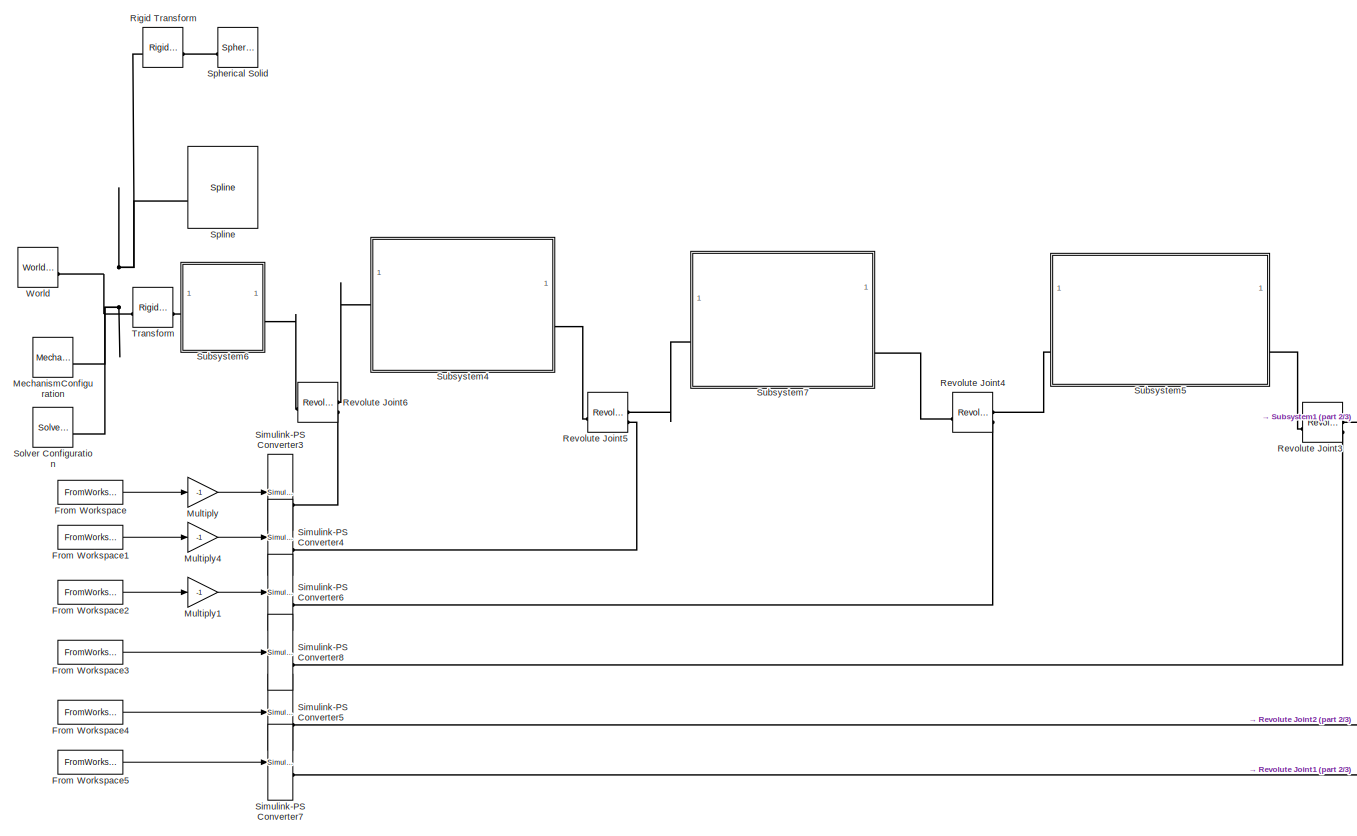
[diagram: root canvas - part 1/3, left side, full height]
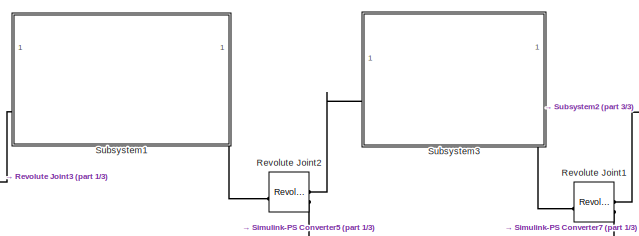
[diagram: root canvas - part 2/3, central region]
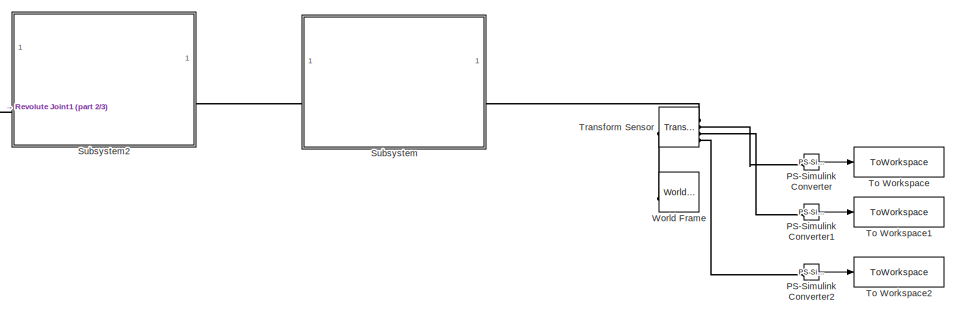
[diagram: root canvas - part 3/3, middle right region]
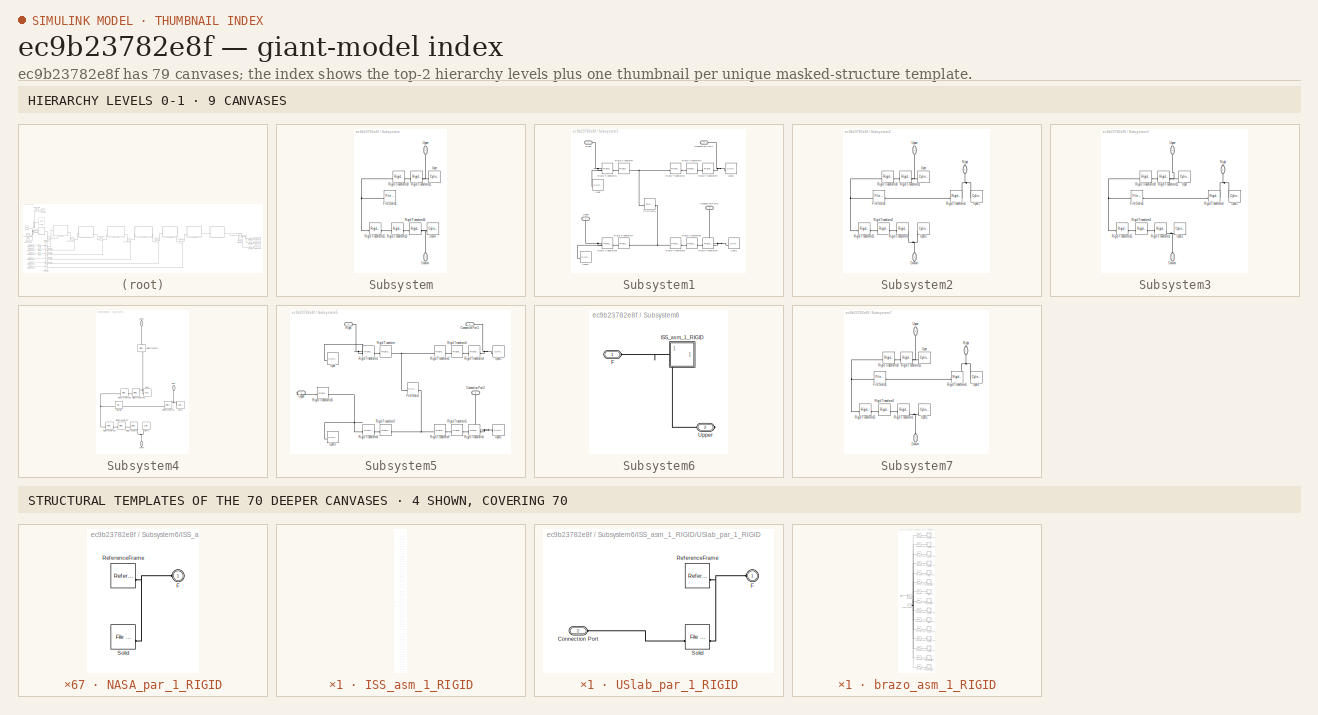
[diagram: thumbnail index - top-2 hierarchy levels (9 canvases) + 4 structural-template representatives of the remaining 70 canvases]
MODEL slx_ec9b23782e8f
KIND model
CONFIG AbsTol = auto
CONFIG EnableMultiTasking = off
CONFIG FixedStep = auto
CONFIG MaxStep = auto
CONFIG MinStep = auto
CONFIG RelTol = 1e-3
CONFIG SampleTimeConstraint = Unconstrained
CONFIG SolverName = VariableStepAuto
CONFIG StartTime = 0.0
CONFIG StopTime = 10
WORKSPACE source: external: MATLAB File  (data not in archive)
BLOCK [FromWorkspace] From Workspace
  SampleTime = -1
  VariableName = ts_q1
BLOCK [FromWorkspace] From Workspace1
  SampleTime = -1
  VariableName = ts_q2
BLOCK [FromWorkspace] From Workspace2
  SampleTime = -1
  VariableName = ts_q3
BLOCK [FromWorkspace] From Workspace3
  SampleTime = -1
  VariableName = ts_q4
BLOCK [FromWorkspace] From Workspace4
  SampleTime = -1
  VariableName = ts_q5
BLOCK [FromWorkspace] From Workspace5
  SampleTime = -1
  VariableName = ts_q6
BLOCK [Reference] MechanismConfiguration  REF=sm_lib/Utilities/Mechanism
Configuration
  SourceBlock = sm_lib/Utilities/Mechanism\nConfiguration
  SourceType = Mechanism\nConfiguration
BLOCK [Gain] Multiply
  Gain = -1
BLOCK [Gain] Multiply1
  Gain = -1
BLOCK [Gain] Multiply4
  Gain = -1
BLOCK [Reference] PS-Simulink Converter  REF=nesl_utility/PS-Simulink
Converter
  SourceBlock = nesl_utility/PS-Simulink\nConverter
  SourceType = PS-Simulink\nConverter
BLOCK [Reference] PS-Simulink Converter1  REF=nesl_utility/PS-Simulink
Converter
  SourceBlock = nesl_utility/PS-Simulink\nConverter
  SourceType = PS-Simulink\nConverter
BLOCK [Reference] PS-Simulink Converter2  REF=nesl_utility/PS-Simulink
Converter
  SourceBlock = nesl_utility/PS-Simulink\nConverter
  SourceType = PS-Simulink\nConverter
BLOCK [Reference] Revolute Joint1  REF=sm_lib/Joints/Revolute Joint
  NameLocation = top
  SourceBlock = sm_lib/Joints/Revolute Joint
  SourceType = Revolute Joint
BLOCK [Reference] Revolute Joint2  REF=sm_lib/Joints/Revolute Joint
  NameLocation = top
  SourceBlock = sm_lib/Joints/Revolute Joint
  SourceType = Revolute Joint
BLOCK [Reference] Revolute Joint3  REF=sm_lib/Joints/Revolute Joint
  NameLocation = top
  SourceBlock = sm_lib/Joints/Revolute Joint
  SourceType = Revolute Joint
BLOCK [Reference] Revolute Joint4  REF=sm_lib/Joints/Revolute Joint
  NameLocation = top
  SourceBlock = sm_lib/Joints/Revolute Joint
  SourceType = Revolute Joint
BLOCK [Reference] Revolute Joint5  REF=sm_lib/Joints/Revolute Joint
  NameLocation = top
  SourceBlock = sm_lib/Joints/Revolute Joint
  SourceType = Revolute Joint
BLOCK [Reference] Revolute Joint6  REF=sm_lib/Joints/Revolute Joint
  NameLocation = top
  SourceBlock = sm_lib/Joints/Revolute Joint
  SourceType = Revolute Joint
BLOCK [Reference] Rigid Transform  REF=sm_lib/Frames and
Transforms/Rigid
Transform
  SourceBlock = sm_lib/Frames and\nTransforms/Rigid\nTransform
  SourceType = Rigid\nTransform
BLOCK [Reference] Simulink-PS Converter3  REF=nesl_utility/Simulink-PS
Converter
  SourceBlock = nesl_utility/Simulink-PS\nConverter
  SourceType = Simulink-PS\nConverter
BLOCK [Reference] Simulink-PS Converter4  REF=nesl_utility/Simulink-PS
Converter
  SourceBlock = nesl_utility/Simulink-PS\nConverter
  SourceType = Simulink-PS\nConverter
BLOCK [Reference] Simulink-PS Converter5  REF=nesl_utility/Simulink-PS
Converter
  SourceBlock = nesl_utility/Simulink-PS\nConverter
  SourceType = Simulink-PS\nConverter
BLOCK [Reference] Simulink-PS Converter6  REF=nesl_utility/Simulink-PS
Converter
  SourceBlock = nesl_utility/Simulink-PS\nConverter
  SourceType = Simulink-PS\nConverter
BLOCK [Reference] Simulink-PS Converter7  REF=nesl_utility/Simulink-PS
Converter
  SourceBlock = nesl_utility/Simulink-PS\nConverter
  SourceType = Simulink-PS\nConverter
BLOCK [Reference] Simulink-PS Converter8  REF=nesl_utility/Simulink-PS
Converter
  SourceBlock = nesl_utility/Simulink-PS\nConverter
  SourceType = Simulink-PS\nConverter
BLOCK [Reference] Solver Configuration  REF=nesl_utility/Solver
Configuration
  SourceBlock = nesl_utility/Solver\nConfiguration
  SourceType = Solver\nConfiguration
BLOCK [Reference] Spherical Solid  REF=sm_lib/Body Elements/Spherical Solid
  NameLocation = top
  SourceBlock = sm_lib/Body Elements/Spherical Solid
  SourceType = Spherical Solid
BLOCK [Reference] Spline  REF=sm_lib/Curves and Surfaces/Spline
  SourceBlock = sm_lib/Curves and Surfaces/Spline
  SourceType = Spline
BLOCK [SubSystem] Subsystem
  NameLocation = top
BLOCK [Reference] Subsystem/Down  REF=sm_lib/Body Elements/Cylindrical Solid
  NameLocation = top
  SourceBlock = sm_lib/Body Elements/Cylindrical Solid
  SourceType = Cylindrical Solid
BLOCK [PMIOPort] Subsystem/Downn
  NameLocation = right
  Port = 2
  Side = Right
BLOCK [Reference] Subsystem/File Solid1  REF=sm_lib/Body Elements/File Solid
  SourceBlock = sm_lib/Body Elements/File Solid
  SourceType = File Solid
BLOCK [Reference] Subsystem/Rigid Transform10  REF=sm_lib/Frames and
Transforms/Rigid
Transform
  SourceBlock = sm_lib/Frames and\nTransforms/Rigid\nTransform
  SourceType = Rigid\nTransform
BLOCK [Reference] Subsystem/Rigid Transform11  REF=sm_lib/Frames and
Transforms/Rigid
Transform
  SourceBlock = sm_lib/Frames and\nTransforms/Rigid\nTransform
  SourceType = Rigid\nTransform
BLOCK [Reference] Subsystem/Rigid Transform13  REF=sm_lib/Frames and
Transforms/Rigid
Transform
  SourceBlock = sm_lib/Frames and\nTransforms/Rigid\nTransform
  SourceType = Rigid\nTransform
BLOCK [Reference] Subsystem/Rigid Transform14  REF=sm_lib/Frames and
Transforms/Rigid
Transform
  SourceBlock = sm_lib/Frames and\nTransforms/Rigid\nTransform
  SourceType = Rigid\nTransform
BLOCK [Reference] Subsystem/Rigid Transform15  REF=sm_lib/Frames and
Transforms/Rigid
Transform
  SourceBlock = sm_lib/Frames and\nTransforms/Rigid\nTransform
  SourceType = Rigid\nTransform
BLOCK [Reference] Subsystem/Uper  REF=sm_lib/Body Elements/Cylindrical Solid
  NameLocation = top
  SourceBlock = sm_lib/Body Elements/Cylindrical Solid
  SourceType = Cylindrical Solid
BLOCK [PMIOPort] Subsystem/Upper
  NameLocation = left
  Side = Left
BLOCK [SubSystem] Subsystem1
  NameLocation = top
BLOCK [PMIOPort] Subsystem1/Connection Port1
  Port = 2
  Side = Left
BLOCK [PMIOPort] Subsystem1/Connection Port2
  Port = 4
  Side = Right
BLOCK [Reference] Subsystem1/File Solid  REF=sm_lib/Body Elements/File Solid
  SourceBlock = sm_lib/Body Elements/File Solid
  SourceType = File Solid
BLOCK [PMIOPort] Subsystem1/Right
  Side = Left
BLOCK [Reference] Subsystem1/Rigid Transform  REF=sm_lib/Frames and
Transforms/Rigid
Transform
  NameLocation = top
  SourceBlock = sm_lib/Frames and\nTransforms/Rigid\nTransform
  SourceType = Rigid\nTransform
BLOCK [Reference] Subsystem1/Rigid Transform1  REF=sm_lib/Frames and
Transforms/Rigid
Transform
  NameLocation = top
  SourceBlock = sm_lib/Frames and\nTransforms/Rigid\nTransform
  SourceType = Rigid\nTransform
BLOCK [Reference] Subsystem1/Rigid Transform2  REF=sm_lib/Frames and
Transforms/Rigid
Transform
  SourceBlock = sm_lib/Frames and\nTransforms/Rigid\nTransform
  SourceType = Rigid\nTransform
BLOCK [Reference] Subsystem1/Rigid Transform3  REF=sm_lib/Frames and
Transforms/Rigid
Transform
  SourceBlock = sm_lib/Frames and\nTransforms/Rigid\nTransform
  SourceType = Rigid\nTransform
BLOCK [Reference] Subsystem1/Rigid Transform4  REF=sm_lib/Frames and
Transforms/Rigid
Transform
  SourceBlock = sm_lib/Frames and\nTransforms/Rigid\nTransform
  SourceType = Rigid\nTransform
BLOCK [Reference] Subsystem1/Rigid Transform5  REF=sm_lib/Frames and
Transforms/Rigid
Transform
  SourceBlock = sm_lib/Frames and\nTransforms/Rigid\nTransform
  SourceType = Rigid\nTransform
BLOCK [Reference] Subsystem1/Rigid Transform6  REF=sm_lib/Frames and
Transforms/Rigid
Transform
  SourceBlock = sm_lib/Frames and\nTransforms/Rigid\nTransform
  SourceType = Rigid\nTransform
BLOCK [Reference] Subsystem1/Rigid Transform7  REF=sm_lib/Frames and
Transforms/Rigid
Transform
  NameLocation = top
  SourceBlock = sm_lib/Frames and\nTransforms/Rigid\nTransform
  SourceType = Rigid\nTransform
BLOCK [Reference] Subsystem1/Rigid Transform8  REF=sm_lib/Frames and
Transforms/Rigid
Transform
  NameLocation = top
  SourceBlock = sm_lib/Frames and\nTransforms/Rigid\nTransform
  SourceType = Rigid\nTransform
BLOCK [Reference] Subsystem1/Rigid Transform9  REF=sm_lib/Frames and
Transforms/Rigid
Transform
  SourceBlock = sm_lib/Frames and\nTransforms/Rigid\nTransform
  SourceType = Rigid\nTransform
BLOCK [Reference] Subsystem1/Uper  REF=sm_lib/Body Elements/Cylindrical Solid
  NameLocation = top
  SourceBlock = sm_lib/Body Elements/Cylindrical Solid
  SourceType = Cylindrical Solid
BLOCK [Reference] Subsystem1/Uper1  REF=sm_lib/Body Elements/Cylindrical Solid
  NameLocation = top
  SourceBlock = sm_lib/Body Elements/Cylindrical Solid
  SourceType = Cylindrical Solid
BLOCK [Reference] Subsystem1/Uper2  REF=sm_lib/Body Elements/Cylindrical Solid
  NameLocation = top
  SourceBlock = sm_lib/Body Elements/Cylindrical Solid
  SourceType = Cylindrical Solid
BLOCK [Reference] Subsystem1/Uper3  REF=sm_lib/Body Elements/Cylindrical Solid
  NameLocation = top
  SourceBlock = sm_lib/Body Elements/Cylindrical Solid
  SourceType = Cylindrical Solid
BLOCK [PMIOPort] Subsystem1/Upper
  Port = 3
  Side = Right
BLOCK [SubSystem] Subsystem2
  NameLocation = top
BLOCK [PMIOPort] Subsystem2/Downn
  NameLocation = right
  Port = 2
  Side = Right
BLOCK [Reference] Subsystem2/File Solid1  REF=sm_lib/Body Elements/File Solid
  SourceBlock = sm_lib/Body Elements/File Solid
  SourceType = File Solid
BLOCK [PMIOPort] Subsystem2/Right
  NameLocation = left
  Port = 3
  Side = Right
BLOCK [Reference] Subsystem2/Rigid Transform1  REF=sm_lib/Frames and
Transforms/Rigid
Transform
  SourceBlock = sm_lib/Frames and\nTransforms/Rigid\nTransform
  SourceType = Rigid\nTransform
BLOCK [Reference] Subsystem2/Rigid Transform10  REF=sm_lib/Frames and
Transforms/Rigid
Transform
  SourceBlock = sm_lib/Frames and\nTransforms/Rigid\nTransform
  SourceType = Rigid\nTransform
BLOCK [Reference] Subsystem2/Rigid Transform11  REF=sm_lib/Frames and
Transforms/Rigid
Transform
  SourceBlock = sm_lib/Frames and\nTransforms/Rigid\nTransform
  SourceType = Rigid\nTransform
BLOCK [Reference] Subsystem2/Rigid Transform15  REF=sm_lib/Frames and
Transforms/Rigid
Transform
  SourceBlock = sm_lib/Frames and\nTransforms/Rigid\nTransform
  SourceType = Rigid\nTransform
BLOCK [Reference] Subsystem2/Rigid Transform2  REF=sm_lib/Frames and
Transforms/Rigid
Transform
  SourceBlock = sm_lib/Frames and\nTransforms/Rigid\nTransform
  SourceType = Rigid\nTransform
BLOCK [Reference] Subsystem2/Rigid Transform4  REF=sm_lib/Frames and
Transforms/Rigid
Transform
  SourceBlock = sm_lib/Frames and\nTransforms/Rigid\nTransform
  SourceType = Rigid\nTransform
BLOCK [Reference] Subsystem2/Uper  REF=sm_lib/Body Elements/Cylindrical Solid
  NameLocation = top
  SourceBlock = sm_lib/Body Elements/Cylindrical Solid
  SourceType = Cylindrical Solid
BLOCK [Reference] Subsystem2/Uper1  REF=sm_lib/Body Elements/Cylindrical Solid
  NameLocation = top
  SourceBlock = sm_lib/Body Elements/Cylindrical Solid
  SourceType = Cylindrical Solid
BLOCK [Reference] Subsystem2/Uper2  REF=sm_lib/Body Elements/Cylindrical Solid
  NameLocation = top
  SourceBlock = sm_lib/Body Elements/Cylindrical Solid
  SourceType = Cylindrical Solid
BLOCK [PMIOPort] Subsystem2/Upper
  NameLocation = left
  Side = Left
BLOCK [SubSystem] Subsystem3
  NameLocation = top
BLOCK [PMIOPort] Subsystem3/Downn
  NameLocation = right
  Port = 2
  Side = Left
BLOCK [Reference] Subsystem3/File Solid1  REF=sm_lib/Body Elements/File Solid
  SourceBlock = sm_lib/Body Elements/File Solid
  SourceType = File Solid
BLOCK [PMIOPort] Subsystem3/Right
  NameLocation = left
  Port = 3
  Side = Right
BLOCK [Reference] Subsystem3/Rigid Transform1  REF=sm_lib/Frames and
Transforms/Rigid
Transform
  SourceBlock = sm_lib/Frames and\nTransforms/Rigid\nTransform
  SourceType = Rigid\nTransform
BLOCK [Reference] Subsystem3/Rigid Transform10  REF=sm_lib/Frames and
Transforms/Rigid
Transform
  SourceBlock = sm_lib/Frames and\nTransforms/Rigid\nTransform
  SourceType = Rigid\nTransform
BLOCK [Reference] Subsystem3/Rigid Transform11  REF=sm_lib/Frames and
Transforms/Rigid
Transform
  SourceBlock = sm_lib/Frames and\nTransforms/Rigid\nTransform
  SourceType = Rigid\nTransform
BLOCK [Reference] Subsystem3/Rigid Transform15  REF=sm_lib/Frames and
Transforms/Rigid
Transform
  SourceBlock = sm_lib/Frames and\nTransforms/Rigid\nTransform
  SourceType = Rigid\nTransform
BLOCK [Reference] Subsystem3/Rigid Transform2  REF=sm_lib/Frames and
Transforms/Rigid
Transform
  SourceBlock = sm_lib/Frames and\nTransforms/Rigid\nTransform
  SourceType = Rigid\nTransform
BLOCK [Reference] Subsystem3/Rigid Transform4  REF=sm_lib/Frames and
Transforms/Rigid
Transform
  SourceBlock = sm_lib/Frames and\nTransforms/Rigid\nTransform
  SourceType = Rigid\nTransform
BLOCK [Reference] Subsystem3/Uper  REF=sm_lib/Body Elements/Cylindrical Solid
  NameLocation = top
  SourceBlock = sm_lib/Body Elements/Cylindrical Solid
  SourceType = Cylindrical Solid
BLOCK [Reference] Subsystem3/Uper1  REF=sm_lib/Body Elements/Cylindrical Solid
  NameLocation = top
  SourceBlock = sm_lib/Body Elements/Cylindrical Solid
  SourceType = Cylindrical Solid
BLOCK [Reference] Subsystem3/Uper2  REF=sm_lib/Body Elements/Cylindrical Solid
  NameLocation = top
  SourceBlock = sm_lib/Body Elements/Cylindrical Solid
  SourceType = Cylindrical Solid
BLOCK [PMIOPort] Subsystem3/Upper
  NameLocation = left
  Side = Left
BLOCK [SubSystem] Subsystem4
  NameLocation = top
BLOCK [PMIOPort] Subsystem4/Downn
  NameLocation = right
  Port = 3
  Side = Right
BLOCK [Reference] Subsystem4/File Solid1  REF=sm_lib/Body Elements/File Solid
  SourceBlock = sm_lib/Body Elements/File Solid
  SourceType = File Solid
BLOCK [PMIOPort] Subsystem4/Right
  NameLocation = left
  Side = Left
BLOCK [Reference] Subsystem4/Rigid Transform  REF=sm_lib/Frames and
Transforms/Rigid
Transform
  NameLocation = left
  SourceBlock = sm_lib/Frames and\nTransforms/Rigid\nTransform
  SourceType = Rigid\nTransform
BLOCK [Reference] Subsystem4/Rigid Transform1  REF=sm_lib/Frames and
Transforms/Rigid
Transform
  SourceBlock = sm_lib/Frames and\nTransforms/Rigid\nTransform
  SourceType = Rigid\nTransform
BLOCK [Reference] Subsystem4/Rigid Transform10  REF=sm_lib/Frames and
Transforms/Rigid
Transform
  SourceBlock = sm_lib/Frames and\nTransforms/Rigid\nTransform
  SourceType = Rigid\nTransform
BLOCK [Reference] Subsystem4/Rigid Transform11  REF=sm_lib/Frames and
Transforms/Rigid
Transform
  SourceBlock = sm_lib/Frames and\nTransforms/Rigid\nTransform
  SourceType = Rigid\nTransform
BLOCK [Reference] Subsystem4/Rigid Transform15  REF=sm_lib/Frames and
Transforms/Rigid
Transform
  SourceBlock = sm_lib/Frames and\nTransforms/Rigid\nTransform
  SourceType = Rigid\nTransform
BLOCK [Reference] Subsystem4/Rigid Transform2  REF=sm_lib/Frames and
Transforms/Rigid
Transform
  SourceBlock = sm_lib/Frames and\nTransforms/Rigid\nTransform
  SourceType = Rigid\nTransform
BLOCK [Reference] Subsystem4/Rigid Transform4  REF=sm_lib/Frames and
Transforms/Rigid
Transform
  SourceBlock = sm_lib/Frames and\nTransforms/Rigid\nTransform
  SourceType = Rigid\nTransform
BLOCK [Reference] Subsystem4/Uper  REF=sm_lib/Body Elements/Cylindrical Solid
  NameLocation = top
  SourceBlock = sm_lib/Body Elements/Cylindrical Solid
  SourceType = Cylindrical Solid
BLOCK [Reference] Subsystem4/Uper1  REF=sm_lib/Body Elements/Cylindrical Solid
  NameLocation = top
  SourceBlock = sm_lib/Body Elements/Cylindrical Solid
  SourceType = Cylindrical Solid
BLOCK [Reference] Subsystem4/Uper2  REF=sm_lib/Body Elements/Cylindrical Solid
  NameLocation = top
  SourceBlock = sm_lib/Body Elements/Cylindrical Solid
  SourceType = Cylindrical Solid
BLOCK [PMIOPort] Subsystem4/Upper
  NameLocation = left
  Port = 2
  Side = Right
BLOCK [SubSystem] Subsystem5
BLOCK [PMIOPort] Subsystem5/Connection Port1
  Port = 2
  Side = Left
BLOCK [PMIOPort] Subsystem5/Connection Port2
  Port = 3
  Side = Right
BLOCK [Reference] Subsystem5/File Solid  REF=sm_lib/Body Elements/File Solid
  SourceBlock = sm_lib/Body Elements/File Solid
  SourceType = File Solid
BLOCK [PMIOPort] Subsystem5/Right
  Side = Left
BLOCK [Reference] Subsystem5/Rigid Transform  REF=sm_lib/Frames and
Transforms/Rigid
Transform
  NameLocation = top
  SourceBlock = sm_lib/Frames and\nTransforms/Rigid\nTransform
  SourceType = Rigid\nTransform
BLOCK [Reference] Subsystem5/Rigid Transform1  REF=sm_lib/Frames and
Transforms/Rigid
Transform
  NameLocation = top
  SourceBlock = sm_lib/Frames and\nTransforms/Rigid\nTransform
  SourceType = Rigid\nTransform
BLOCK [Reference] Subsystem5/Rigid Transform10  REF=sm_lib/Frames and
Transforms/Rigid
Transform
  SourceBlock = sm_lib/Frames and\nTransforms/Rigid\nTransform
  SourceType = Rigid\nTransform
BLOCK [Reference] Subsystem5/Rigid Transform2  REF=sm_lib/Frames and
Transforms/Rigid
Transform
  SourceBlock = sm_lib/Frames and\nTransforms/Rigid\nTransform
  SourceType = Rigid\nTransform
BLOCK [Reference] Subsystem5/Rigid Transform3  REF=sm_lib/Frames and
Transforms/Rigid
Transform
  SourceBlock = sm_lib/Frames and\nTransforms/Rigid\nTransform
  SourceType = Rigid\nTransform
BLOCK [Reference] Subsystem5/Rigid Transform4  REF=sm_lib/Frames and
Transforms/Rigid
Transform
  SourceBlock = sm_lib/Frames and\nTransforms/Rigid\nTransform
  SourceType = Rigid\nTransform
BLOCK [Reference] Subsystem5/Rigid Transform5  REF=sm_lib/Frames and
Transforms/Rigid
Transform
  SourceBlock = sm_lib/Frames and\nTransforms/Rigid\nTransform
  SourceType = Rigid\nTransform
BLOCK [Reference] Subsystem5/Rigid Transform6  REF=sm_lib/Frames and
Transforms/Rigid
Transform
  SourceBlock = sm_lib/Frames and\nTransforms/Rigid\nTransform
  SourceType = Rigid\nTransform
BLOCK [Reference] Subsystem5/Rigid Transform7  REF=sm_lib/Frames and
Transforms/Rigid
Transform
  NameLocation = top
  SourceBlock = sm_lib/Frames and\nTransforms/Rigid\nTransform
  SourceType = Rigid\nTransform
BLOCK [Reference] Subsystem5/Rigid Transform8  REF=sm_lib/Frames and
Transforms/Rigid
Transform
  NameLocation = top
  SourceBlock = sm_lib/Frames and\nTransforms/Rigid\nTransform
  SourceType = Rigid\nTransform
BLOCK [Reference] Subsystem5/Rigid Transform9  REF=sm_lib/Frames and
Transforms/Rigid
Transform
  SourceBlock = sm_lib/Frames and\nTransforms/Rigid\nTransform
  SourceType = Rigid\nTransform
BLOCK [Reference] Subsystem5/Uper  REF=sm_lib/Body Elements/Cylindrical Solid
  NameLocation = top
  SourceBlock = sm_lib/Body Elements/Cylindrical Solid
  SourceType = Cylindrical Solid
BLOCK [Reference] Subsystem5/Uper1  REF=sm_lib/Body Elements/Cylindrical Solid
  NameLocation = top
  SourceBlock = sm_lib/Body Elements/Cylindrical Solid
  SourceType = Cylindrical Solid
BLOCK [Reference] Subsystem5/Uper2  REF=sm_lib/Body Elements/Cylindrical Solid
  NameLocation = top
  SourceBlock = sm_lib/Body Elements/Cylindrical Solid
  SourceType = Cylindrical Solid
BLOCK [Reference] Subsystem5/Uper3  REF=sm_lib/Body Elements/Cylindrical Solid
  NameLocation = top
  SourceBlock = sm_lib/Body Elements/Cylindrical Solid
  SourceType = Cylindrical Solid
BLOCK [PMIOPort] Subsystem5/Upper
  Port = 4
  Side = Right
BLOCK [SubSystem] Subsystem6
BLOCK [PMIOPort] Subsystem6/F
  Side = Left
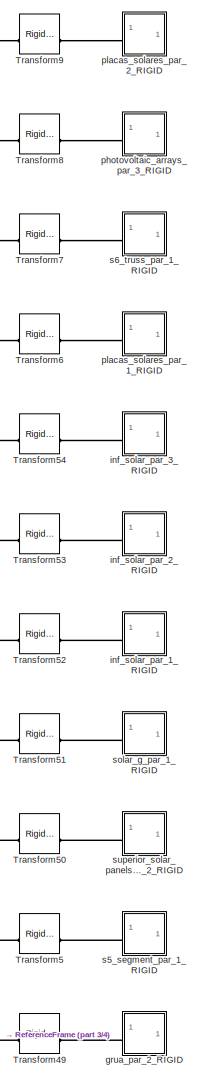
[diagram: Subsystem6/ISS_asm_1_RIGID - part 1/4, top center region]
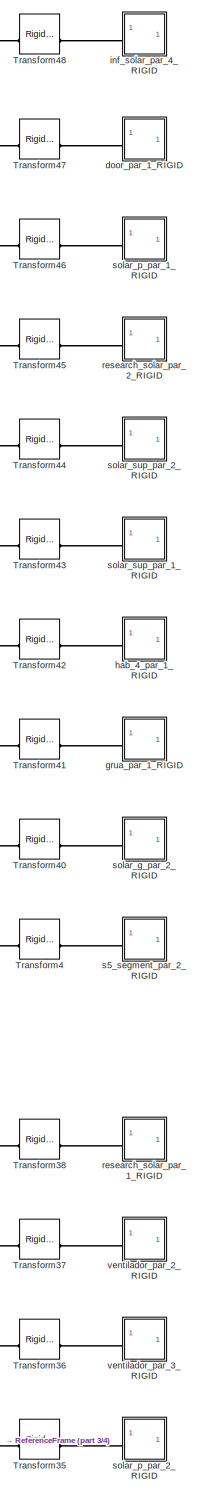
[diagram: Subsystem6/ISS_asm_1_RIGID - part 2/4, central region]
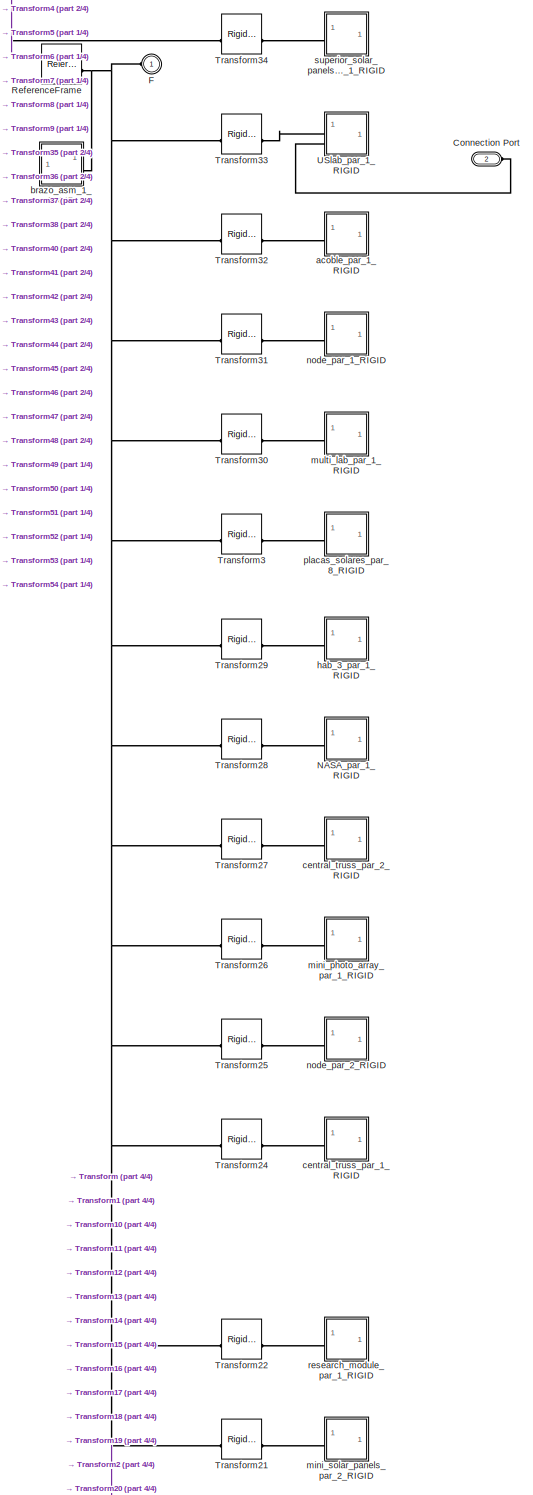
[diagram: Subsystem6/ISS_asm_1_RIGID - part 3/4, full width, middle band]
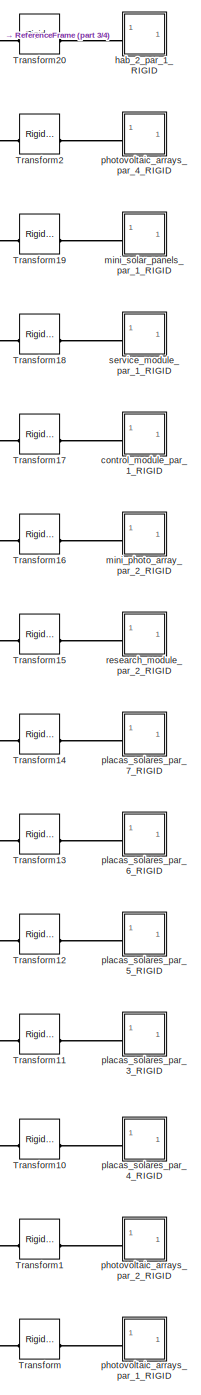
[diagram: Subsystem6/ISS_asm_1_RIGID - part 4/4, bottom center region]
BLOCK [SubSystem] Subsystem6/ISS_asm_1_RIGID
BLOCK [PMIOPort] Subsystem6/ISS_asm_1_RIGID/Connection Port
  Port = 2
  Side = Left
BLOCK [PMIOPort] Subsystem6/ISS_asm_1_RIGID/F
  Side = Left
BLOCK [SubSystem] Subsystem6/ISS_asm_1_RIGID/NASA_par_1_RIGID
BLOCK [PMIOPort] Subsystem6/ISS_asm_1_RIGID/NASA_par_1_RIGID/F
  Side = Left
BLOCK [Reference] Subsystem6/ISS_asm_1_RIGID/NASA_par_1_RIGID/ReferenceFrame  REF=sm_lib/Frames and
Transforms/Reference
Frame
  SourceBlock = sm_lib/Frames and\nTransforms/Reference\nFrame
  SourceType = Reference\nFrame
BLOCK [Reference] Subsystem6/ISS_asm_1_RIGID/NASA_par_1_RIGID/Solid  REF=sm_lib/Body Elements/File Solid
  SourceBlock = sm_lib/Body Elements/File Solid
  SourceType = File Solid
BLOCK [Reference] Subsystem6/ISS_asm_1_RIGID/ReferenceFrame  REF=sm_lib/Frames and
Transforms/Reference
Frame
  SourceBlock = sm_lib/Frames and\nTransforms/Reference\nFrame
  SourceType = Reference\nFrame
BLOCK [Reference] Subsystem6/ISS_asm_1_RIGID/Transform  REF=sm_lib/Frames and
Transforms/Rigid
Transform
  SourceBlock = sm_lib/Frames and\nTransforms/Rigid\nTransform
  SourceType = Rigid\nTransform
BLOCK [Reference] Subsystem6/ISS_asm_1_RIGID/Transform1  REF=sm_lib/Frames and
Transforms/Rigid
Transform
  SourceBlock = sm_lib/Frames and\nTransforms/Rigid\nTransform
  SourceType = Rigid\nTransform
BLOCK [Reference] Subsystem6/ISS_asm_1_RIGID/Transform10  REF=sm_lib/Frames and
Transforms/Rigid
Transform
  SourceBlock = sm_lib/Frames and\nTransforms/Rigid\nTransform
  SourceType = Rigid\nTransform
BLOCK [Reference] Subsystem6/ISS_asm_1_RIGID/Transform11  REF=sm_lib/Frames and
Transforms/Rigid
Transform
  SourceBlock = sm_lib/Frames and\nTransforms/Rigid\nTransform
  SourceType = Rigid\nTransform
BLOCK [Reference] Subsystem6/ISS_asm_1_RIGID/Transform12  REF=sm_lib/Frames and
Transforms/Rigid
Transform
  SourceBlock = sm_lib/Frames and\nTransforms/Rigid\nTransform
  SourceType = Rigid\nTransform
BLOCK [Reference] Subsystem6/ISS_asm_1_RIGID/Transform13  REF=sm_lib/Frames and
Transforms/Rigid
Transform
  SourceBlock = sm_lib/Frames and\nTransforms/Rigid\nTransform
  SourceType = Rigid\nTransform
BLOCK [Reference] Subsystem6/ISS_asm_1_RIGID/Transform14  REF=sm_lib/Frames and
Transforms/Rigid
Transform
  SourceBlock = sm_lib/Frames and\nTransforms/Rigid\nTransform
  SourceType = Rigid\nTransform
BLOCK [Reference] Subsystem6/ISS_asm_1_RIGID/Transform15  REF=sm_lib/Frames and
Transforms/Rigid
Transform
  SourceBlock = sm_lib/Frames and\nTransforms/Rigid\nTransform
  SourceType = Rigid\nTransform
BLOCK [Reference] Subsystem6/ISS_asm_1_RIGID/Transform16  REF=sm_lib/Frames and
Transforms/Rigid
Transform
  SourceBlock = sm_lib/Frames and\nTransforms/Rigid\nTransform
  SourceType = Rigid\nTransform
BLOCK [Reference] Subsystem6/ISS_asm_1_RIGID/Transform17  REF=sm_lib/Frames and
Transforms/Rigid
Transform
  SourceBlock = sm_lib/Frames and\nTransforms/Rigid\nTransform
  SourceType = Rigid\nTransform
BLOCK [Reference] Subsystem6/ISS_asm_1_RIGID/Transform18  REF=sm_lib/Frames and
Transforms/Rigid
Transform
  SourceBlock = sm_lib/Frames and\nTransforms/Rigid\nTransform
  SourceType = Rigid\nTransform
BLOCK [Reference] Subsystem6/ISS_asm_1_RIGID/Transform19  REF=sm_lib/Frames and
Transforms/Rigid
Transform
  SourceBlock = sm_lib/Frames and\nTransforms/Rigid\nTransform
  SourceType = Rigid\nTransform
BLOCK [Reference] Subsystem6/ISS_asm_1_RIGID/Transform2  REF=sm_lib/Frames and
Transforms/Rigid
Transform
  SourceBlock = sm_lib/Frames and\nTransforms/Rigid\nTransform
  SourceType = Rigid\nTransform
BLOCK [Reference] Subsystem6/ISS_asm_1_RIGID/Transform20  REF=sm_lib/Frames and
Transforms/Rigid
Transform
  SourceBlock = sm_lib/Frames and\nTransforms/Rigid\nTransform
  SourceType = Rigid\nTransform
BLOCK [Reference] Subsystem6/ISS_asm_1_RIGID/Transform21  REF=sm_lib/Frames and
Transforms/Rigid
Transform
  SourceBlock = sm_lib/Frames and\nTransforms/Rigid\nTransform
  SourceType = Rigid\nTransform
BLOCK [Reference] Subsystem6/ISS_asm_1_RIGID/Transform22  REF=sm_lib/Frames and
Transforms/Rigid
Transform
  SourceBlock = sm_lib/Frames and\nTransforms/Rigid\nTransform
  SourceType = Rigid\nTransform
BLOCK [Reference] Subsystem6/ISS_asm_1_RIGID/Transform24  REF=sm_lib/Frames and
Transforms/Rigid
Transform
  SourceBlock = sm_lib/Frames and\nTransforms/Rigid\nTransform
  SourceType = Rigid\nTransform
BLOCK [Reference] Subsystem6/ISS_asm_1_RIGID/Transform25  REF=sm_lib/Frames and
Transforms/Rigid
Transform
  SourceBlock = sm_lib/Frames and\nTransforms/Rigid\nTransform
  SourceType = Rigid\nTransform
BLOCK [Reference] Subsystem6/ISS_asm_1_RIGID/Transform26  REF=sm_lib/Frames and
Transforms/Rigid
Transform
  SourceBlock = sm_lib/Frames and\nTransforms/Rigid\nTransform
  SourceType = Rigid\nTransform
BLOCK [Reference] Subsystem6/ISS_asm_1_RIGID/Transform27  REF=sm_lib/Frames and
Transforms/Rigid
Transform
  SourceBlock = sm_lib/Frames and\nTransforms/Rigid\nTransform
  SourceType = Rigid\nTransform
BLOCK [Reference] Subsystem6/ISS_asm_1_RIGID/Transform28  REF=sm_lib/Frames and
Transforms/Rigid
Transform
  SourceBlock = sm_lib/Frames and\nTransforms/Rigid\nTransform
  SourceType = Rigid\nTransform
BLOCK [Reference] Subsystem6/ISS_asm_1_RIGID/Transform29  REF=sm_lib/Frames and
Transforms/Rigid
Transform
  SourceBlock = sm_lib/Frames and\nTransforms/Rigid\nTransform
  SourceType = Rigid\nTransform
BLOCK [Reference] Subsystem6/ISS_asm_1_RIGID/Transform3  REF=sm_lib/Frames and
Transforms/Rigid
Transform
  SourceBlock = sm_lib/Frames and\nTransforms/Rigid\nTransform
  SourceType = Rigid\nTransform
BLOCK [Reference] Subsystem6/ISS_asm_1_RIGID/Transform30  REF=sm_lib/Frames and
Transforms/Rigid
Transform
  SourceBlock = sm_lib/Frames and\nTransforms/Rigid\nTransform
  SourceType = Rigid\nTransform
BLOCK [Reference] Subsystem6/ISS_asm_1_RIGID/Transform31  REF=sm_lib/Frames and
Transforms/Rigid
Transform
  SourceBlock = sm_lib/Frames and\nTransforms/Rigid\nTransform
  SourceType = Rigid\nTransform
BLOCK [Reference] Subsystem6/ISS_asm_1_RIGID/Transform32  REF=sm_lib/Frames and
Transforms/Rigid
Transform
  SourceBlock = sm_lib/Frames and\nTransforms/Rigid\nTransform
  SourceType = Rigid\nTransform
BLOCK [Reference] Subsystem6/ISS_asm_1_RIGID/Transform33  REF=sm_lib/Frames and
Transforms/Rigid
Transform
  SourceBlock = sm_lib/Frames and\nTransforms/Rigid\nTransform
  SourceType = Rigid\nTransform
BLOCK [Reference] Subsystem6/ISS_asm_1_RIGID/Transform34  REF=sm_lib/Frames and
Transforms/Rigid
Transform
  SourceBlock = sm_lib/Frames and\nTransforms/Rigid\nTransform
  SourceType = Rigid\nTransform
BLOCK [Reference] Subsystem6/ISS_asm_1_RIGID/Transform35  REF=sm_lib/Frames and
Transforms/Rigid
Transform
  SourceBlock = sm_lib/Frames and\nTransforms/Rigid\nTransform
  SourceType = Rigid\nTransform
BLOCK [Reference] Subsystem6/ISS_asm_1_RIGID/Transform36  REF=sm_lib/Frames and
Transforms/Rigid
Transform
  SourceBlock = sm_lib/Frames and\nTransforms/Rigid\nTransform
  SourceType = Rigid\nTransform
BLOCK [Reference] Subsystem6/ISS_asm_1_RIGID/Transform37  REF=sm_lib/Frames and
Transforms/Rigid
Transform
  SourceBlock = sm_lib/Frames and\nTransforms/Rigid\nTransform
  SourceType = Rigid\nTransform
BLOCK [Reference] Subsystem6/ISS_asm_1_RIGID/Transform38  REF=sm_lib/Frames and
Transforms/Rigid
Transform
  SourceBlock = sm_lib/Frames and\nTransforms/Rigid\nTransform
  SourceType = Rigid\nTransform
BLOCK [Reference] Subsystem6/ISS_asm_1_RIGID/Transform4  REF=sm_lib/Frames and
Transforms/Rigid
Transform
  SourceBlock = sm_lib/Frames and\nTransforms/Rigid\nTransform
  SourceType = Rigid\nTransform
BLOCK [Reference] Subsystem6/ISS_asm_1_RIGID/Transform40  REF=sm_lib/Frames and
Transforms/Rigid
Transform
  SourceBlock = sm_lib/Frames and\nTransforms/Rigid\nTransform
  SourceType = Rigid\nTransform
BLOCK [Reference] Subsystem6/ISS_asm_1_RIGID/Transform41  REF=sm_lib/Frames and
Transforms/Rigid
Transform
  SourceBlock = sm_lib/Frames and\nTransforms/Rigid\nTransform
  SourceType = Rigid\nTransform
BLOCK [Reference] Subsystem6/ISS_asm_1_RIGID/Transform42  REF=sm_lib/Frames and
Transforms/Rigid
Transform
  SourceBlock = sm_lib/Frames and\nTransforms/Rigid\nTransform
  SourceType = Rigid\nTransform
BLOCK [Reference] Subsystem6/ISS_asm_1_RIGID/Transform43  REF=sm_lib/Frames and
Transforms/Rigid
Transform
  SourceBlock = sm_lib/Frames and\nTransforms/Rigid\nTransform
  SourceType = Rigid\nTransform
BLOCK [Reference] Subsystem6/ISS_asm_1_RIGID/Transform44  REF=sm_lib/Frames and
Transforms/Rigid
Transform
  SourceBlock = sm_lib/Frames and\nTransforms/Rigid\nTransform
  SourceType = Rigid\nTransform
BLOCK [Reference] Subsystem6/ISS_asm_1_RIGID/Transform45  REF=sm_lib/Frames and
Transforms/Rigid
Transform
  SourceBlock = sm_lib/Frames and\nTransforms/Rigid\nTransform
  SourceType = Rigid\nTransform
BLOCK [Reference] Subsystem6/ISS_asm_1_RIGID/Transform46  REF=sm_lib/Frames and
Transforms/Rigid
Transform
  SourceBlock = sm_lib/Frames and\nTransforms/Rigid\nTransform
  SourceType = Rigid\nTransform
BLOCK [Reference] Subsystem6/ISS_asm_1_RIGID/Transform47  REF=sm_lib/Frames and
Transforms/Rigid
Transform
  SourceBlock = sm_lib/Frames and\nTransforms/Rigid\nTransform
  SourceType = Rigid\nTransform
BLOCK [Reference] Subsystem6/ISS_asm_1_RIGID/Transform48  REF=sm_lib/Frames and
Transforms/Rigid
Transform
  SourceBlock = sm_lib/Frames and\nTransforms/Rigid\nTransform
  SourceType = Rigid\nTransform
BLOCK [Reference] Subsystem6/ISS_asm_1_RIGID/Transform49  REF=sm_lib/Frames and
Transforms/Rigid
Transform
  SourceBlock = sm_lib/Frames and\nTransforms/Rigid\nTransform
  SourceType = Rigid\nTransform
BLOCK [Reference] Subsystem6/ISS_asm_1_RIGID/Transform5  REF=sm_lib/Frames and
Transforms/Rigid
Transform
  SourceBlock = sm_lib/Frames and\nTransforms/Rigid\nTransform
  SourceType = Rigid\nTransform
BLOCK [Reference] Subsystem6/ISS_asm_1_RIGID/Transform50  REF=sm_lib/Frames and
Transforms/Rigid
Transform
  SourceBlock = sm_lib/Frames and\nTransforms/Rigid\nTransform
  SourceType = Rigid\nTransform
BLOCK [Reference] Subsystem6/ISS_asm_1_RIGID/Transform51  REF=sm_lib/Frames and
Transforms/Rigid
Transform
  SourceBlock = sm_lib/Frames and\nTransforms/Rigid\nTransform
  SourceType = Rigid\nTransform
BLOCK [Reference] Subsystem6/ISS_asm_1_RIGID/Transform52  REF=sm_lib/Frames and
Transforms/Rigid
Transform
  SourceBlock = sm_lib/Frames and\nTransforms/Rigid\nTransform
  SourceType = Rigid\nTransform
BLOCK [Reference] Subsystem6/ISS_asm_1_RIGID/Transform53  REF=sm_lib/Frames and
Transforms/Rigid
Transform
  SourceBlock = sm_lib/Frames and\nTransforms/Rigid\nTransform
  SourceType = Rigid\nTransform
BLOCK [Reference] Subsystem6/ISS_asm_1_RIGID/Transform54  REF=sm_lib/Frames and
Transforms/Rigid
Transform
  SourceBlock = sm_lib/Frames and\nTransforms/Rigid\nTransform
  SourceType = Rigid\nTransform
BLOCK [Reference] Subsystem6/ISS_asm_1_RIGID/Transform6  REF=sm_lib/Frames and
Transforms/Rigid
Transform
  SourceBlock = sm_lib/Frames and\nTransforms/Rigid\nTransform
  SourceType = Rigid\nTransform
BLOCK [Reference] Subsystem6/ISS_asm_1_RIGID/Transform7  REF=sm_lib/Frames and
Transforms/Rigid
Transform
  SourceBlock = sm_lib/Frames and\nTransforms/Rigid\nTransform
  SourceType = Rigid\nTransform
BLOCK [Reference] Subsystem6/ISS_asm_1_RIGID/Transform8  REF=sm_lib/Frames and
Transforms/Rigid
Transform
  SourceBlock = sm_lib/Frames and\nTransforms/Rigid\nTransform
  SourceType = Rigid\nTransform
BLOCK [Reference] Subsystem6/ISS_asm_1_RIGID/Transform9  REF=sm_lib/Frames and
Transforms/Rigid
Transform
  SourceBlock = sm_lib/Frames and\nTransforms/Rigid\nTransform
  SourceType = Rigid\nTransform
BLOCK [SubSystem] Subsystem6/ISS_asm_1_RIGID/USlab_par_1_RIGID
BLOCK [PMIOPort] Subsystem6/ISS_asm_1_RIGID/USlab_par_1_RIGID/Connection Port
  Port = 2
  Side = Left
BLOCK [PMIOPort] Subsystem6/ISS_asm_1_RIGID/USlab_par_1_RIGID/F
  Side = Left
BLOCK [Reference] Subsystem6/ISS_asm_1_RIGID/USlab_par_1_RIGID/ReferenceFrame  REF=sm_lib/Frames and
Transforms/Reference
Frame
  SourceBlock = sm_lib/Frames and\nTransforms/Reference\nFrame
  SourceType = Reference\nFrame
BLOCK [Reference] Subsystem6/ISS_asm_1_RIGID/USlab_par_1_RIGID/Solid  REF=sm_lib/Body Elements/File Solid
  SourceBlock = sm_lib/Body Elements/File Solid
  SourceType = File Solid
BLOCK [SubSystem] Subsystem6/ISS_asm_1_RIGID/acoble_par_1_RIGID
BLOCK [PMIOPort] Subsystem6/ISS_asm_1_RIGID/acoble_par_1_RIGID/F
  Side = Left
BLOCK [Reference] Subsystem6/ISS_asm_1_RIGID/acoble_par_1_RIGID/ReferenceFrame  REF=sm_lib/Frames and
Transforms/Reference
Frame
  SourceBlock = sm_lib/Frames and\nTransforms/Reference\nFrame
  SourceType = Reference\nFrame
BLOCK [Reference] Subsystem6/ISS_asm_1_RIGID/acoble_par_1_RIGID/Solid  REF=sm_lib/Body Elements/File Solid
  SourceBlock = sm_lib/Body Elements/File Solid
  SourceType = File Solid
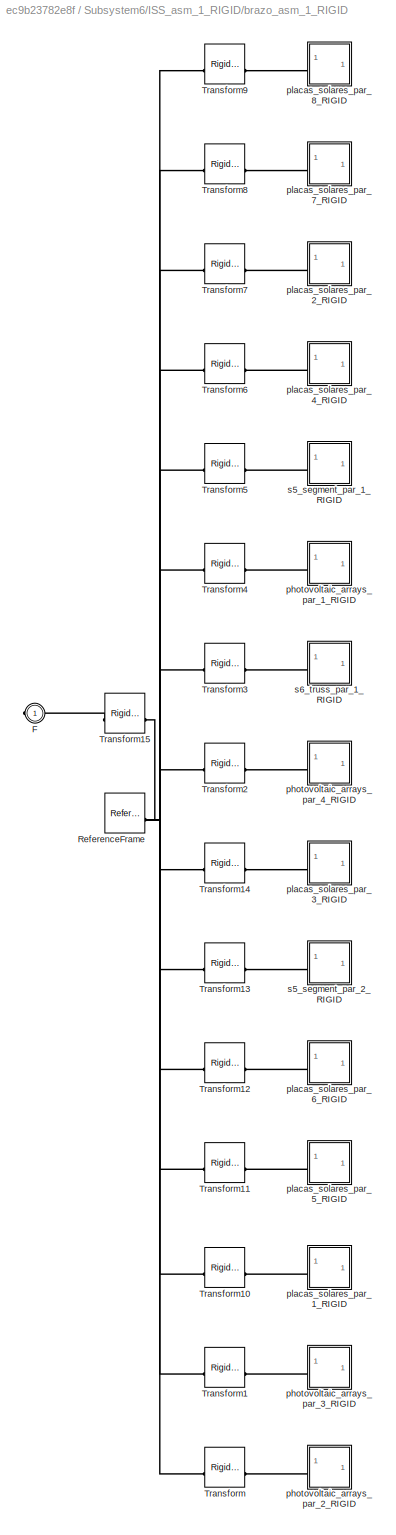
BLOCK [SubSystem] Subsystem6/ISS_asm_1_RIGID/brazo_asm_1_RIGID
BLOCK [PMIOPort] Subsystem6/ISS_asm_1_RIGID/brazo_asm_1_RIGID/F
  Side = Right
BLOCK [Reference] Subsystem6/ISS_asm_1_RIGID/brazo_asm_1_RIGID/ReferenceFrame  REF=sm_lib/Frames and
Transforms/Reference
Frame
  SourceBlock = sm_lib/Frames and\nTransforms/Reference\nFrame
  SourceType = Reference\nFrame
BLOCK [Reference] Subsystem6/ISS_asm_1_RIGID/brazo_asm_1_RIGID/Transform  REF=sm_lib/Frames and
Transforms/Rigid
Transform
  SourceBlock = sm_lib/Frames and\nTransforms/Rigid\nTransform
  SourceType = Rigid\nTransform
BLOCK [Reference] Subsystem6/ISS_asm_1_RIGID/brazo_asm_1_RIGID/Transform1  REF=sm_lib/Frames and
Transforms/Rigid
Transform
  SourceBlock = sm_lib/Frames and\nTransforms/Rigid\nTransform
  SourceType = Rigid\nTransform
BLOCK [Reference] Subsystem6/ISS_asm_1_RIGID/brazo_asm_1_RIGID/Transform10  REF=sm_lib/Frames and
Transforms/Rigid
Transform
  SourceBlock = sm_lib/Frames and\nTransforms/Rigid\nTransform
  SourceType = Rigid\nTransform
BLOCK [Reference] Subsystem6/ISS_asm_1_RIGID/brazo_asm_1_RIGID/Transform11  REF=sm_lib/Frames and
Transforms/Rigid
Transform
  SourceBlock = sm_lib/Frames and\nTransforms/Rigid\nTransform
  SourceType = Rigid\nTransform
BLOCK [Reference] Subsystem6/ISS_asm_1_RIGID/brazo_asm_1_RIGID/Transform12  REF=sm_lib/Frames and
Transforms/Rigid
Transform
  SourceBlock = sm_lib/Frames and\nTransforms/Rigid\nTransform
  SourceType = Rigid\nTransform
BLOCK [Reference] Subsystem6/ISS_asm_1_RIGID/brazo_asm_1_RIGID/Transform13  REF=sm_lib/Frames and
Transforms/Rigid
Transform
  SourceBlock = sm_lib/Frames and\nTransforms/Rigid\nTransform
  SourceType = Rigid\nTransform
BLOCK [Reference] Subsystem6/ISS_asm_1_RIGID/brazo_asm_1_RIGID/Transform14  REF=sm_lib/Frames and
Transforms/Rigid
Transform
  SourceBlock = sm_lib/Frames and\nTransforms/Rigid\nTransform
  SourceType = Rigid\nTransform
BLOCK [Reference] Subsystem6/ISS_asm_1_RIGID/brazo_asm_1_RIGID/Transform15  REF=sm_lib/Frames and
Transforms/Rigid
Transform
  SourceBlock = sm_lib/Frames and\nTransforms/Rigid\nTransform
  SourceType = Rigid\nTransform
BLOCK [Reference] Subsystem6/ISS_asm_1_RIGID/brazo_asm_1_RIGID/Transform2  REF=sm_lib/Frames and
Transforms/Rigid
Transform
  SourceBlock = sm_lib/Frames and\nTransforms/Rigid\nTransform
  SourceType = Rigid\nTransform
BLOCK [Reference] Subsystem6/ISS_asm_1_RIGID/brazo_asm_1_RIGID/Transform3  REF=sm_lib/Frames and
Transforms/Rigid
Transform
  SourceBlock = sm_lib/Frames and\nTransforms/Rigid\nTransform
  SourceType = Rigid\nTransform
BLOCK [Reference] Subsystem6/ISS_asm_1_RIGID/brazo_asm_1_RIGID/Transform4  REF=sm_lib/Frames and
Transforms/Rigid
Transform
  SourceBlock = sm_lib/Frames and\nTransforms/Rigid\nTransform
  SourceType = Rigid\nTransform
BLOCK [Reference] Subsystem6/ISS_asm_1_RIGID/brazo_asm_1_RIGID/Transform5  REF=sm_lib/Frames and
Transforms/Rigid
Transform
  SourceBlock = sm_lib/Frames and\nTransforms/Rigid\nTransform
  SourceType = Rigid\nTransform
BLOCK [Reference] Subsystem6/ISS_asm_1_RIGID/brazo_asm_1_RIGID/Transform6  REF=sm_lib/Frames and
Transforms/Rigid
Transform
  SourceBlock = sm_lib/Frames and\nTransforms/Rigid\nTransform
  SourceType = Rigid\nTransform
BLOCK [Reference] Subsystem6/ISS_asm_1_RIGID/brazo_asm_1_RIGID/Transform7  REF=sm_lib/Frames and
Transforms/Rigid
Transform
  SourceBlock = sm_lib/Frames and\nTransforms/Rigid\nTransform
  SourceType = Rigid\nTransform
BLOCK [Reference] Subsystem6/ISS_asm_1_RIGID/brazo_asm_1_RIGID/Transform8  REF=sm_lib/Frames and
Transforms/Rigid
Transform
  SourceBlock = sm_lib/Frames and\nTransforms/Rigid\nTransform
  SourceType = Rigid\nTransform
BLOCK [Reference] Subsystem6/ISS_asm_1_RIGID/brazo_asm_1_RIGID/Transform9  REF=sm_lib/Frames and
Transforms/Rigid
Transform
  SourceBlock = sm_lib/Frames and\nTransforms/Rigid\nTransform
  SourceType = Rigid\nTransform
BLOCK [SubSystem] Subsystem6/ISS_asm_1_RIGID/brazo_asm_1_RIGID/photovoltaic_arrays_par_1_RIGID
BLOCK [PMIOPort] Subsystem6/ISS_asm_1_RIGID/brazo_asm_1_RIGID/photovoltaic_arrays_par_1_RIGID/F
  Side = Left
BLOCK [Reference] Subsystem6/ISS_asm_1_RIGID/brazo_asm_1_RIGID/photovoltaic_arrays_par_1_RIGID/ReferenceFrame  REF=sm_lib/Frames and
Transforms/Reference
Frame
  SourceBlock = sm_lib/Frames and\nTransforms/Reference\nFrame
  SourceType = Reference\nFrame
BLOCK [Reference] Subsystem6/ISS_asm_1_RIGID/brazo_asm_1_RIGID/photovoltaic_arrays_par_1_RIGID/Solid  REF=sm_lib/Body Elements/File Solid
  SourceBlock = sm_lib/Body Elements/File Solid
  SourceType = File Solid
BLOCK [SubSystem] Subsystem6/ISS_asm_1_RIGID/brazo_asm_1_RIGID/photovoltaic_arrays_par_2_RIGID
BLOCK [PMIOPort] Subsystem6/ISS_asm_1_RIGID/brazo_asm_1_RIGID/photovoltaic_arrays_par_2_RIGID/F
  Side = Left
BLOCK [Reference] Subsystem6/ISS_asm_1_RIGID/brazo_asm_1_RIGID/photovoltaic_arrays_par_2_RIGID/ReferenceFrame  REF=sm_lib/Frames and
Transforms/Reference
Frame
  SourceBlock = sm_lib/Frames and\nTransforms/Reference\nFrame
  SourceType = Reference\nFrame
BLOCK [Reference] Subsystem6/ISS_asm_1_RIGID/brazo_asm_1_RIGID/photovoltaic_arrays_par_2_RIGID/Solid  REF=sm_lib/Body Elements/File Solid
  SourceBlock = sm_lib/Body Elements/File Solid
  SourceType = File Solid
BLOCK [SubSystem] Subsystem6/ISS_asm_1_RIGID/brazo_asm_1_RIGID/photovoltaic_arrays_par_3_RIGID
BLOCK [PMIOPort] Subsystem6/ISS_asm_1_RIGID/brazo_asm_1_RIGID/photovoltaic_arrays_par_3_RIGID/F
  Side = Left
BLOCK [Reference] Subsystem6/ISS_asm_1_RIGID/brazo_asm_1_RIGID/photovoltaic_arrays_par_3_RIGID/ReferenceFrame  REF=sm_lib/Frames and
Transforms/Reference
Frame
  SourceBlock = sm_lib/Frames and\nTransforms/Reference\nFrame
  SourceType = Reference\nFrame
BLOCK [Reference] Subsystem6/ISS_asm_1_RIGID/brazo_asm_1_RIGID/photovoltaic_arrays_par_3_RIGID/Solid  REF=sm_lib/Body Elements/File Solid
  SourceBlock = sm_lib/Body Elements/File Solid
  SourceType = File Solid
BLOCK [SubSystem] Subsystem6/ISS_asm_1_RIGID/brazo_asm_1_RIGID/photovoltaic_arrays_par_4_RIGID
BLOCK [PMIOPort] Subsystem6/ISS_asm_1_RIGID/brazo_asm_1_RIGID/photovoltaic_arrays_par_4_RIGID/F
  Side = Left
BLOCK [Reference] Subsystem6/ISS_asm_1_RIGID/brazo_asm_1_RIGID/photovoltaic_arrays_par_4_RIGID/ReferenceFrame  REF=sm_lib/Frames and
Transforms/Reference
Frame
  SourceBlock = sm_lib/Frames and\nTransforms/Reference\nFrame
  SourceType = Reference\nFrame
BLOCK [Reference] Subsystem6/ISS_asm_1_RIGID/brazo_asm_1_RIGID/photovoltaic_arrays_par_4_RIGID/Solid  REF=sm_lib/Body Elements/File Solid
  SourceBlock = sm_lib/Body Elements/File Solid
  SourceType = File Solid
BLOCK [SubSystem] Subsystem6/ISS_asm_1_RIGID/brazo_asm_1_RIGID/placas_solares_par_1_RIGID
BLOCK [PMIOPort] Subsystem6/ISS_asm_1_RIGID/brazo_asm_1_RIGID/placas_solares_par_1_RIGID/F
  Side = Left
BLOCK [Reference] Subsystem6/ISS_asm_1_RIGID/brazo_asm_1_RIGID/placas_solares_par_1_RIGID/ReferenceFrame  REF=sm_lib/Frames and
Transforms/Reference
Frame
  SourceBlock = sm_lib/Frames and\nTransforms/Reference\nFrame
  SourceType = Reference\nFrame
BLOCK [Reference] Subsystem6/ISS_asm_1_RIGID/brazo_asm_1_RIGID/placas_solares_par_1_RIGID/Solid  REF=sm_lib/Body Elements/File Solid
  SourceBlock = sm_lib/Body Elements/File Solid
  SourceType = File Solid
BLOCK [SubSystem] Subsystem6/ISS_asm_1_RIGID/brazo_asm_1_RIGID/placas_solares_par_2_RIGID
BLOCK [PMIOPort] Subsystem6/ISS_asm_1_RIGID/brazo_asm_1_RIGID/placas_solares_par_2_RIGID/F
  Side = Left
BLOCK [Reference] Subsystem6/ISS_asm_1_RIGID/brazo_asm_1_RIGID/placas_solares_par_2_RIGID/ReferenceFrame  REF=sm_lib/Frames and
Transforms/Reference
Frame
  SourceBlock = sm_lib/Frames and\nTransforms/Reference\nFrame
  SourceType = Reference\nFrame
BLOCK [Reference] Subsystem6/ISS_asm_1_RIGID/brazo_asm_1_RIGID/placas_solares_par_2_RIGID/Solid  REF=sm_lib/Body Elements/File Solid
  SourceBlock = sm_lib/Body Elements/File Solid
  SourceType = File Solid
BLOCK [SubSystem] Subsystem6/ISS_asm_1_RIGID/brazo_asm_1_RIGID/placas_solares_par_3_RIGID
BLOCK [PMIOPort] Subsystem6/ISS_asm_1_RIGID/brazo_asm_1_RIGID/placas_solares_par_3_RIGID/F
  Side = Left
BLOCK [Reference] Subsystem6/ISS_asm_1_RIGID/brazo_asm_1_RIGID/placas_solares_par_3_RIGID/ReferenceFrame  REF=sm_lib/Frames and
Transforms/Reference
Frame
  SourceBlock = sm_lib/Frames and\nTransforms/Reference\nFrame
  SourceType = Reference\nFrame
BLOCK [Reference] Subsystem6/ISS_asm_1_RIGID/brazo_asm_1_RIGID/placas_solares_par_3_RIGID/Solid  REF=sm_lib/Body Elements/File Solid
  SourceBlock = sm_lib/Body Elements/File Solid
  SourceType = File Solid
BLOCK [SubSystem] Subsystem6/ISS_asm_1_RIGID/brazo_asm_1_RIGID/placas_solares_par_4_RIGID
BLOCK [PMIOPort] Subsystem6/ISS_asm_1_RIGID/brazo_asm_1_RIGID/placas_solares_par_4_RIGID/F
  Side = Left
BLOCK [Reference] Subsystem6/ISS_asm_1_RIGID/brazo_asm_1_RIGID/placas_solares_par_4_RIGID/ReferenceFrame  REF=sm_lib/Frames and
Transforms/Reference
Frame
  SourceBlock = sm_lib/Frames and\nTransforms/Reference\nFrame
  SourceType = Reference\nFrame
BLOCK [Reference] Subsystem6/ISS_asm_1_RIGID/brazo_asm_1_RIGID/placas_solares_par_4_RIGID/Solid  REF=sm_lib/Body Elements/File Solid
  SourceBlock = sm_lib/Body Elements/File Solid
  SourceType = File Solid
BLOCK [SubSystem] Subsystem6/ISS_asm_1_RIGID/brazo_asm_1_RIGID/placas_solares_par_5_RIGID
BLOCK [PMIOPort] Subsystem6/ISS_asm_1_RIGID/brazo_asm_1_RIGID/placas_solares_par_5_RIGID/F
  Side = Left
BLOCK [Reference] Subsystem6/ISS_asm_1_RIGID/brazo_asm_1_RIGID/placas_solares_par_5_RIGID/ReferenceFrame  REF=sm_lib/Frames and
Transforms/Reference
Frame
  SourceBlock = sm_lib/Frames and\nTransforms/Reference\nFrame
  SourceType = Reference\nFrame
BLOCK [Reference] Subsystem6/ISS_asm_1_RIGID/brazo_asm_1_RIGID/placas_solares_par_5_RIGID/Solid  REF=sm_lib/Body Elements/File Solid
  SourceBlock = sm_lib/Body Elements/File Solid
  SourceType = File Solid
BLOCK [SubSystem] Subsystem6/ISS_asm_1_RIGID/brazo_asm_1_RIGID/placas_solares_par_6_RIGID
BLOCK [PMIOPort] Subsystem6/ISS_asm_1_RIGID/brazo_asm_1_RIGID/placas_solares_par_6_RIGID/F
  Side = Left
BLOCK [Reference] Subsystem6/ISS_asm_1_RIGID/brazo_asm_1_RIGID/placas_solares_par_6_RIGID/ReferenceFrame  REF=sm_lib/Frames and
Transforms/Reference
Frame
  SourceBlock = sm_lib/Frames and\nTransforms/Reference\nFrame
  SourceType = Reference\nFrame
BLOCK [Reference] Subsystem6/ISS_asm_1_RIGID/brazo_asm_1_RIGID/placas_solares_par_6_RIGID/Solid  REF=sm_lib/Body Elements/File Solid
  SourceBlock = sm_lib/Body Elements/File Solid
  SourceType = File Solid
BLOCK [SubSystem] Subsystem6/ISS_asm_1_RIGID/brazo_asm_1_RIGID/placas_solares_par_7_RIGID
BLOCK [PMIOPort] Subsystem6/ISS_asm_1_RIGID/brazo_asm_1_RIGID/placas_solares_par_7_RIGID/F
  Side = Left
BLOCK [Reference] Subsystem6/ISS_asm_1_RIGID/brazo_asm_1_RIGID/placas_solares_par_7_RIGID/ReferenceFrame  REF=sm_lib/Frames and
Transforms/Reference
Frame
  SourceBlock = sm_lib/Frames and\nTransforms/Reference\nFrame
  SourceType = Reference\nFrame
BLOCK [Reference] Subsystem6/ISS_asm_1_RIGID/brazo_asm_1_RIGID/placas_solares_par_7_RIGID/Solid  REF=sm_lib/Body Elements/File Solid
  SourceBlock = sm_lib/Body Elements/File Solid
  SourceType = File Solid
BLOCK [SubSystem] Subsystem6/ISS_asm_1_RIGID/brazo_asm_1_RIGID/placas_solares_par_8_RIGID
BLOCK [PMIOPort] Subsystem6/ISS_asm_1_RIGID/brazo_asm_1_RIGID/placas_solares_par_8_RIGID/F
  Side = Left
BLOCK [Reference] Subsystem6/ISS_asm_1_RIGID/brazo_asm_1_RIGID/placas_solares_par_8_RIGID/ReferenceFrame  REF=sm_lib/Frames and
Transforms/Reference
Frame
  SourceBlock = sm_lib/Frames and\nTransforms/Reference\nFrame
  SourceType = Reference\nFrame
BLOCK [Reference] Subsystem6/ISS_asm_1_RIGID/brazo_asm_1_RIGID/placas_solares_par_8_RIGID/Solid  REF=sm_lib/Body Elements/File Solid
  SourceBlock = sm_lib/Body Elements/File Solid
  SourceType = File Solid
BLOCK [SubSystem] Subsystem6/ISS_asm_1_RIGID/brazo_asm_1_RIGID/s5_segment_par_1_RIGID
BLOCK [PMIOPort] Subsystem6/ISS_asm_1_RIGID/brazo_asm_1_RIGID/s5_segment_par_1_RIGID/F
  Side = Left
BLOCK [Reference] Subsystem6/ISS_asm_1_RIGID/brazo_asm_1_RIGID/s5_segment_par_1_RIGID/ReferenceFrame  REF=sm_lib/Frames and
Transforms/Reference
Frame
  SourceBlock = sm_lib/Frames and\nTransforms/Reference\nFrame
  SourceType = Reference\nFrame
BLOCK [Reference] Subsystem6/ISS_asm_1_RIGID/brazo_asm_1_RIGID/s5_segment_par_1_RIGID/Solid  REF=sm_lib/Body Elements/File Solid
  SourceBlock = sm_lib/Body Elements/File Solid
  SourceType = File Solid
BLOCK [SubSystem] Subsystem6/ISS_asm_1_RIGID/brazo_asm_1_RIGID/s5_segment_par_2_RIGID
BLOCK [PMIOPort] Subsystem6/ISS_asm_1_RIGID/brazo_asm_1_RIGID/s5_segment_par_2_RIGID/F
  Side = Left
BLOCK [Reference] Subsystem6/ISS_asm_1_RIGID/brazo_asm_1_RIGID/s5_segment_par_2_RIGID/ReferenceFrame  REF=sm_lib/Frames and
Transforms/Reference
Frame
  SourceBlock = sm_lib/Frames and\nTransforms/Reference\nFrame
  SourceType = Reference\nFrame
BLOCK [Reference] Subsystem6/ISS_asm_1_RIGID/brazo_asm_1_RIGID/s5_segment_par_2_RIGID/Solid  REF=sm_lib/Body Elements/File Solid
  SourceBlock = sm_lib/Body Elements/File Solid
  SourceType = File Solid
BLOCK [SubSystem] Subsystem6/ISS_asm_1_RIGID/brazo_asm_1_RIGID/s6_truss_par_1_RIGID
BLOCK [PMIOPort] Subsystem6/ISS_asm_1_RIGID/brazo_asm_1_RIGID/s6_truss_par_1_RIGID/F
  Side = Left
BLOCK [Reference] Subsystem6/ISS_asm_1_RIGID/brazo_asm_1_RIGID/s6_truss_par_1_RIGID/ReferenceFrame  REF=sm_lib/Frames and
Transforms/Reference
Frame
  SourceBlock = sm_lib/Frames and\nTransforms/Reference\nFrame
  SourceType = Reference\nFrame
BLOCK [Reference] Subsystem6/ISS_asm_1_RIGID/brazo_asm_1_RIGID/s6_truss_par_1_RIGID/Solid  REF=sm_lib/Body Elements/File Solid
  SourceBlock = sm_lib/Body Elements/File Solid
  SourceType = File Solid
BLOCK [SubSystem] Subsystem6/ISS_asm_1_RIGID/central_truss_par_1_RIGID
BLOCK [PMIOPort] Subsystem6/ISS_asm_1_RIGID/central_truss_par_1_RIGID/F
  Side = Left
BLOCK [Reference] Subsystem6/ISS_asm_1_RIGID/central_truss_par_1_RIGID/ReferenceFrame  REF=sm_lib/Frames and
Transforms/Reference
Frame
  SourceBlock = sm_lib/Frames and\nTransforms/Reference\nFrame
  SourceType = Reference\nFrame
BLOCK [Reference] Subsystem6/ISS_asm_1_RIGID/central_truss_par_1_RIGID/Solid  REF=sm_lib/Body Elements/File Solid
  SourceBlock = sm_lib/Body Elements/File Solid
  SourceType = File Solid
BLOCK [SubSystem] Subsystem6/ISS_asm_1_RIGID/central_truss_par_2_RIGID
BLOCK [PMIOPort] Subsystem6/ISS_asm_1_RIGID/central_truss_par_2_RIGID/F
  Side = Left
BLOCK [Reference] Subsystem6/ISS_asm_1_RIGID/central_truss_par_2_RIGID/ReferenceFrame  REF=sm_lib/Frames and
Transforms/Reference
Frame
  SourceBlock = sm_lib/Frames and\nTransforms/Reference\nFrame
  SourceType = Reference\nFrame
BLOCK [Reference] Subsystem6/ISS_asm_1_RIGID/central_truss_par_2_RIGID/Solid  REF=sm_lib/Body Elements/File Solid
  SourceBlock = sm_lib/Body Elements/File Solid
  SourceType = File Solid
BLOCK [SubSystem] Subsystem6/ISS_asm_1_RIGID/control_module_par_1_RIGID
BLOCK [PMIOPort] Subsystem6/ISS_asm_1_RIGID/control_module_par_1_RIGID/F
  Side = Left
BLOCK [Reference] Subsystem6/ISS_asm_1_RIGID/control_module_par_1_RIGID/ReferenceFrame  REF=sm_lib/Frames and
Transforms/Reference
Frame
  SourceBlock = sm_lib/Frames and\nTransforms/Reference\nFrame
  SourceType = Reference\nFrame
BLOCK [Reference] Subsystem6/ISS_asm_1_RIGID/control_module_par_1_RIGID/Solid  REF=sm_lib/Body Elements/File Solid
  SourceBlock = sm_lib/Body Elements/File Solid
  SourceType = File Solid
BLOCK [SubSystem] Subsystem6/ISS_asm_1_RIGID/door_par_1_RIGID
BLOCK [PMIOPort] Subsystem6/ISS_asm_1_RIGID/door_par_1_RIGID/F
  Side = Left
BLOCK [Reference] Subsystem6/ISS_asm_1_RIGID/door_par_1_RIGID/ReferenceFrame  REF=sm_lib/Frames and
Transforms/Reference
Frame
  SourceBlock = sm_lib/Frames and\nTransforms/Reference\nFrame
  SourceType = Reference\nFrame
BLOCK [Reference] Subsystem6/ISS_asm_1_RIGID/door_par_1_RIGID/Solid  REF=sm_lib/Body Elements/File Solid
  SourceBlock = sm_lib/Body Elements/File Solid
  SourceType = File Solid
BLOCK [SubSystem] Subsystem6/ISS_asm_1_RIGID/grua_par_1_RIGID
BLOCK [PMIOPort] Subsystem6/ISS_asm_1_RIGID/grua_par_1_RIGID/F
  Side = Left
BLOCK [Reference] Subsystem6/ISS_asm_1_RIGID/grua_par_1_RIGID/ReferenceFrame  REF=sm_lib/Frames and
Transforms/Reference
Frame
  SourceBlock = sm_lib/Frames and\nTransforms/Reference\nFrame
  SourceType = Reference\nFrame
BLOCK [Reference] Subsystem6/ISS_asm_1_RIGID/grua_par_1_RIGID/Solid  REF=sm_lib/Body Elements/File Solid
  SourceBlock = sm_lib/Body Elements/File Solid
  SourceType = File Solid
BLOCK [SubSystem] Subsystem6/ISS_asm_1_RIGID/grua_par_2_RIGID
BLOCK [PMIOPort] Subsystem6/ISS_asm_1_RIGID/grua_par_2_RIGID/F
  Side = Left
BLOCK [Reference] Subsystem6/ISS_asm_1_RIGID/grua_par_2_RIGID/ReferenceFrame  REF=sm_lib/Frames and
Transforms/Reference
Frame
  SourceBlock = sm_lib/Frames and\nTransforms/Reference\nFrame
  SourceType = Reference\nFrame
BLOCK [Reference] Subsystem6/ISS_asm_1_RIGID/grua_par_2_RIGID/Solid  REF=sm_lib/Body Elements/File Solid
  SourceBlock = sm_lib/Body Elements/File Solid
  SourceType = File Solid
BLOCK [SubSystem] Subsystem6/ISS_asm_1_RIGID/hab_2_par_1_RIGID
BLOCK [PMIOPort] Subsystem6/ISS_asm_1_RIGID/hab_2_par_1_RIGID/F
  Side = Left
BLOCK [Reference] Subsystem6/ISS_asm_1_RIGID/hab_2_par_1_RIGID/ReferenceFrame  REF=sm_lib/Frames and
Transforms/Reference
Frame
  SourceBlock = sm_lib/Frames and\nTransforms/Reference\nFrame
  SourceType = Reference\nFrame
BLOCK [Reference] Subsystem6/ISS_asm_1_RIGID/hab_2_par_1_RIGID/Solid  REF=sm_lib/Body Elements/File Solid
  SourceBlock = sm_lib/Body Elements/File Solid
  SourceType = File Solid
BLOCK [SubSystem] Subsystem6/ISS_asm_1_RIGID/hab_3_par_1_RIGID
BLOCK [PMIOPort] Subsystem6/ISS_asm_1_RIGID/hab_3_par_1_RIGID/F
  Side = Left
BLOCK [Reference] Subsystem6/ISS_asm_1_RIGID/hab_3_par_1_RIGID/ReferenceFrame  REF=sm_lib/Frames and
Transforms/Reference
Frame
  SourceBlock = sm_lib/Frames and\nTransforms/Reference\nFrame
  SourceType = Reference\nFrame
BLOCK [Reference] Subsystem6/ISS_asm_1_RIGID/hab_3_par_1_RIGID/Solid  REF=sm_lib/Body Elements/File Solid
  SourceBlock = sm_lib/Body Elements/File Solid
  SourceType = File Solid
BLOCK [SubSystem] Subsystem6/ISS_asm_1_RIGID/hab_4_par_1_RIGID
BLOCK [PMIOPort] Subsystem6/ISS_asm_1_RIGID/hab_4_par_1_RIGID/F
  Side = Left
BLOCK [Reference] Subsystem6/ISS_asm_1_RIGID/hab_4_par_1_RIGID/ReferenceFrame  REF=sm_lib/Frames and
Transforms/Reference
Frame
  SourceBlock = sm_lib/Frames and\nTransforms/Reference\nFrame
  SourceType = Reference\nFrame
BLOCK [Reference] Subsystem6/ISS_asm_1_RIGID/hab_4_par_1_RIGID/Solid  REF=sm_lib/Body Elements/File Solid
  SourceBlock = sm_lib/Body Elements/File Solid
  SourceType = File Solid
BLOCK [SubSystem] Subsystem6/ISS_asm_1_RIGID/inf_solar_par_1_RIGID
BLOCK [PMIOPort] Subsystem6/ISS_asm_1_RIGID/inf_solar_par_1_RIGID/F
  Side = Left
BLOCK [Reference] Subsystem6/ISS_asm_1_RIGID/inf_solar_par_1_RIGID/ReferenceFrame  REF=sm_lib/Frames and
Transforms/Reference
Frame
  SourceBlock = sm_lib/Frames and\nTransforms/Reference\nFrame
  SourceType = Reference\nFrame
BLOCK [Reference] Subsystem6/ISS_asm_1_RIGID/inf_solar_par_1_RIGID/Solid  REF=sm_lib/Body Elements/File Solid
  SourceBlock = sm_lib/Body Elements/File Solid
  SourceType = File Solid
BLOCK [SubSystem] Subsystem6/ISS_asm_1_RIGID/inf_solar_par_2_RIGID
BLOCK [PMIOPort] Subsystem6/ISS_asm_1_RIGID/inf_solar_par_2_RIGID/F
  Side = Left
BLOCK [Reference] Subsystem6/ISS_asm_1_RIGID/inf_solar_par_2_RIGID/ReferenceFrame  REF=sm_lib/Frames and
Transforms/Reference
Frame
  SourceBlock = sm_lib/Frames and\nTransforms/Reference\nFrame
  SourceType = Reference\nFrame
BLOCK [Reference] Subsystem6/ISS_asm_1_RIGID/inf_solar_par_2_RIGID/Solid  REF=sm_lib/Body Elements/File Solid
  SourceBlock = sm_lib/Body Elements/File Solid
  SourceType = File Solid
BLOCK [SubSystem] Subsystem6/ISS_asm_1_RIGID/inf_solar_par_3_RIGID
BLOCK [PMIOPort] Subsystem6/ISS_asm_1_RIGID/inf_solar_par_3_RIGID/F
  Side = Left
BLOCK [Reference] Subsystem6/ISS_asm_1_RIGID/inf_solar_par_3_RIGID/ReferenceFrame  REF=sm_lib/Frames and
Transforms/Reference
Frame
  SourceBlock = sm_lib/Frames and\nTransforms/Reference\nFrame
  SourceType = Reference\nFrame
BLOCK [Reference] Subsystem6/ISS_asm_1_RIGID/inf_solar_par_3_RIGID/Solid  REF=sm_lib/Body Elements/File Solid
  SourceBlock = sm_lib/Body Elements/File Solid
  SourceType = File Solid
BLOCK [SubSystem] Subsystem6/ISS_asm_1_RIGID/inf_solar_par_4_RIGID
BLOCK [PMIOPort] Subsystem6/ISS_asm_1_RIGID/inf_solar_par_4_RIGID/F
  Side = Left
BLOCK [Reference] Subsystem6/ISS_asm_1_RIGID/inf_solar_par_4_RIGID/ReferenceFrame  REF=sm_lib/Frames and
Transforms/Reference
Frame
  SourceBlock = sm_lib/Frames and\nTransforms/Reference\nFrame
  SourceType = Reference\nFrame
BLOCK [Reference] Subsystem6/ISS_asm_1_RIGID/inf_solar_par_4_RIGID/Solid  REF=sm_lib/Body Elements/File Solid
  SourceBlock = sm_lib/Body Elements/File Solid
  SourceType = File Solid
BLOCK [SubSystem] Subsystem6/ISS_asm_1_RIGID/mini_photo_array_par_1_RIGID
BLOCK [PMIOPort] Subsystem6/ISS_asm_1_RIGID/mini_photo_array_par_1_RIGID/F
  Side = Left
BLOCK [Reference] Subsystem6/ISS_asm_1_RIGID/mini_photo_array_par_1_RIGID/ReferenceFrame  REF=sm_lib/Frames and
Transforms/Reference
Frame
  SourceBlock = sm_lib/Frames and\nTransforms/Reference\nFrame
  SourceType = Reference\nFrame
BLOCK [Reference] Subsystem6/ISS_asm_1_RIGID/mini_photo_array_par_1_RIGID/Solid  REF=sm_lib/Body Elements/File Solid
  SourceBlock = sm_lib/Body Elements/File Solid
  SourceType = File Solid
BLOCK [SubSystem] Subsystem6/ISS_asm_1_RIGID/mini_photo_array_par_2_RIGID
BLOCK [PMIOPort] Subsystem6/ISS_asm_1_RIGID/mini_photo_array_par_2_RIGID/F
  Side = Left
BLOCK [Reference] Subsystem6/ISS_asm_1_RIGID/mini_photo_array_par_2_RIGID/ReferenceFrame  REF=sm_lib/Frames and
Transforms/Reference
Frame
  SourceBlock = sm_lib/Frames and\nTransforms/Reference\nFrame
  SourceType = Reference\nFrame
BLOCK [Reference] Subsystem6/ISS_asm_1_RIGID/mini_photo_array_par_2_RIGID/Solid  REF=sm_lib/Body Elements/File Solid
  SourceBlock = sm_lib/Body Elements/File Solid
  SourceType = File Solid
BLOCK [SubSystem] Subsystem6/ISS_asm_1_RIGID/mini_solar_panels_par_1_RIGID
BLOCK [PMIOPort] Subsystem6/ISS_asm_1_RIGID/mini_solar_panels_par_1_RIGID/F
  Side = Left
BLOCK [Reference] Subsystem6/ISS_asm_1_RIGID/mini_solar_panels_par_1_RIGID/ReferenceFrame  REF=sm_lib/Frames and
Transforms/Reference
Frame
  SourceBlock = sm_lib/Frames and\nTransforms/Reference\nFrame
  SourceType = Reference\nFrame
BLOCK [Reference] Subsystem6/ISS_asm_1_RIGID/mini_solar_panels_par_1_RIGID/Solid  REF=sm_lib/Body Elements/File Solid
  SourceBlock = sm_lib/Body Elements/File Solid
  SourceType = File Solid
BLOCK [SubSystem] Subsystem6/ISS_asm_1_RIGID/mini_solar_panels_par_2_RIGID
BLOCK [PMIOPort] Subsystem6/ISS_asm_1_RIGID/mini_solar_panels_par_2_RIGID/F
  Side = Left
BLOCK [Reference] Subsystem6/ISS_asm_1_RIGID/mini_solar_panels_par_2_RIGID/ReferenceFrame  REF=sm_lib/Frames and
Transforms/Reference
Frame
  SourceBlock = sm_lib/Frames and\nTransforms/Reference\nFrame
  SourceType = Reference\nFrame
BLOCK [Reference] Subsystem6/ISS_asm_1_RIGID/mini_solar_panels_par_2_RIGID/Solid  REF=sm_lib/Body Elements/File Solid
  SourceBlock = sm_lib/Body Elements/File Solid
  SourceType = File Solid
BLOCK [SubSystem] Subsystem6/ISS_asm_1_RIGID/multi_lab_par_1_RIGID
BLOCK [PMIOPort] Subsystem6/ISS_asm_1_RIGID/multi_lab_par_1_RIGID/F
  Side = Left
BLOCK [Reference] Subsystem6/ISS_asm_1_RIGID/multi_lab_par_1_RIGID/ReferenceFrame  REF=sm_lib/Frames and
Transforms/Reference
Frame
  SourceBlock = sm_lib/Frames and\nTransforms/Reference\nFrame
  SourceType = Reference\nFrame
BLOCK [Reference] Subsystem6/ISS_asm_1_RIGID/multi_lab_par_1_RIGID/Solid  REF=sm_lib/Body Elements/File Solid
  SourceBlock = sm_lib/Body Elements/File Solid
  SourceType = File Solid
BLOCK [SubSystem] Subsystem6/ISS_asm_1_RIGID/node_par_1_RIGID
BLOCK [PMIOPort] Subsystem6/ISS_asm_1_RIGID/node_par_1_RIGID/F
  Side = Left
BLOCK [Reference] Subsystem6/ISS_asm_1_RIGID/node_par_1_RIGID/ReferenceFrame  REF=sm_lib/Frames and
Transforms/Reference
Frame
  SourceBlock = sm_lib/Frames and\nTransforms/Reference\nFrame
  SourceType = Reference\nFrame
BLOCK [Reference] Subsystem6/ISS_asm_1_RIGID/node_par_1_RIGID/Solid  REF=sm_lib/Body Elements/File Solid
  SourceBlock = sm_lib/Body Elements/File Solid
  SourceType = File Solid
BLOCK [SubSystem] Subsystem6/ISS_asm_1_RIGID/node_par_2_RIGID
BLOCK [PMIOPort] Subsystem6/ISS_asm_1_RIGID/node_par_2_RIGID/F
  Side = Left
BLOCK [Reference] Subsystem6/ISS_asm_1_RIGID/node_par_2_RIGID/ReferenceFrame  REF=sm_lib/Frames and
Transforms/Reference
Frame
  SourceBlock = sm_lib/Frames and\nTransforms/Reference\nFrame
  SourceType = Reference\nFrame
BLOCK [Reference] Subsystem6/ISS_asm_1_RIGID/node_par_2_RIGID/Solid  REF=sm_lib/Body Elements/File Solid
  SourceBlock = sm_lib/Body Elements/File Solid
  SourceType = File Solid
BLOCK [SubSystem] Subsystem6/ISS_asm_1_RIGID/photovoltaic_arrays_par_1_RIGID
BLOCK [PMIOPort] Subsystem6/ISS_asm_1_RIGID/photovoltaic_arrays_par_1_RIGID/F
  Side = Left
BLOCK [Reference] Subsystem6/ISS_asm_1_RIGID/photovoltaic_arrays_par_1_RIGID/ReferenceFrame  REF=sm_lib/Frames and
Transforms/Reference
Frame
  SourceBlock = sm_lib/Frames and\nTransforms/Reference\nFrame
  SourceType = Reference\nFrame
BLOCK [Reference] Subsystem6/ISS_asm_1_RIGID/photovoltaic_arrays_par_1_RIGID/Solid  REF=sm_lib/Body Elements/File Solid
  SourceBlock = sm_lib/Body Elements/File Solid
  SourceType = File Solid
BLOCK [SubSystem] Subsystem6/ISS_asm_1_RIGID/photovoltaic_arrays_par_2_RIGID
BLOCK [PMIOPort] Subsystem6/ISS_asm_1_RIGID/photovoltaic_arrays_par_2_RIGID/F
  Side = Left
BLOCK [Reference] Subsystem6/ISS_asm_1_RIGID/photovoltaic_arrays_par_2_RIGID/ReferenceFrame  REF=sm_lib/Frames and
Transforms/Reference
Frame
  SourceBlock = sm_lib/Frames and\nTransforms/Reference\nFrame
  SourceType = Reference\nFrame
BLOCK [Reference] Subsystem6/ISS_asm_1_RIGID/photovoltaic_arrays_par_2_RIGID/Solid  REF=sm_lib/Body Elements/File Solid
  SourceBlock = sm_lib/Body Elements/File Solid
  SourceType = File Solid
BLOCK [SubSystem] Subsystem6/ISS_asm_1_RIGID/photovoltaic_arrays_par_3_RIGID
BLOCK [PMIOPort] Subsystem6/ISS_asm_1_RIGID/photovoltaic_arrays_par_3_RIGID/F
  Side = Left
BLOCK [Reference] Subsystem6/ISS_asm_1_RIGID/photovoltaic_arrays_par_3_RIGID/ReferenceFrame  REF=sm_lib/Frames and
Transforms/Reference
Frame
  SourceBlock = sm_lib/Frames and\nTransforms/Reference\nFrame
  SourceType = Reference\nFrame
BLOCK [Reference] Subsystem6/ISS_asm_1_RIGID/photovoltaic_arrays_par_3_RIGID/Solid  REF=sm_lib/Body Elements/File Solid
  SourceBlock = sm_lib/Body Elements/File Solid
  SourceType = File Solid
BLOCK [SubSystem] Subsystem6/ISS_asm_1_RIGID/photovoltaic_arrays_par_4_RIGID
BLOCK [PMIOPort] Subsystem6/ISS_asm_1_RIGID/photovoltaic_arrays_par_4_RIGID/F
  Side = Left
BLOCK [Reference] Subsystem6/ISS_asm_1_RIGID/photovoltaic_arrays_par_4_RIGID/ReferenceFrame  REF=sm_lib/Frames and
Transforms/Reference
Frame
  SourceBlock = sm_lib/Frames and\nTransforms/Reference\nFrame
  SourceType = Reference\nFrame
BLOCK [Reference] Subsystem6/ISS_asm_1_RIGID/photovoltaic_arrays_par_4_RIGID/Solid  REF=sm_lib/Body Elements/File Solid
  SourceBlock = sm_lib/Body Elements/File Solid
  SourceType = File Solid
BLOCK [SubSystem] Subsystem6/ISS_asm_1_RIGID/placas_solares_par_1_RIGID
BLOCK [PMIOPort] Subsystem6/ISS_asm_1_RIGID/placas_solares_par_1_RIGID/F
  Side = Left
BLOCK [Reference] Subsystem6/ISS_asm_1_RIGID/placas_solares_par_1_RIGID/ReferenceFrame  REF=sm_lib/Frames and
Transforms/Reference
Frame
  SourceBlock = sm_lib/Frames and\nTransforms/Reference\nFrame
  SourceType = Reference\nFrame
BLOCK [Reference] Subsystem6/ISS_asm_1_RIGID/placas_solares_par_1_RIGID/Solid  REF=sm_lib/Body Elements/File Solid
  SourceBlock = sm_lib/Body Elements/File Solid
  SourceType = File Solid
BLOCK [SubSystem] Subsystem6/ISS_asm_1_RIGID/placas_solares_par_2_RIGID
BLOCK [PMIOPort] Subsystem6/ISS_asm_1_RIGID/placas_solares_par_2_RIGID/F
  Side = Left
BLOCK [Reference] Subsystem6/ISS_asm_1_RIGID/placas_solares_par_2_RIGID/ReferenceFrame  REF=sm_lib/Frames and
Transforms/Reference
Frame
  SourceBlock = sm_lib/Frames and\nTransforms/Reference\nFrame
  SourceType = Reference\nFrame
BLOCK [Reference] Subsystem6/ISS_asm_1_RIGID/placas_solares_par_2_RIGID/Solid  REF=sm_lib/Body Elements/File Solid
  SourceBlock = sm_lib/Body Elements/File Solid
  SourceType = File Solid
BLOCK [SubSystem] Subsystem6/ISS_asm_1_RIGID/placas_solares_par_3_RIGID
BLOCK [PMIOPort] Subsystem6/ISS_asm_1_RIGID/placas_solares_par_3_RIGID/F
  Side = Left
BLOCK [Reference] Subsystem6/ISS_asm_1_RIGID/placas_solares_par_3_RIGID/ReferenceFrame  REF=sm_lib/Frames and
Transforms/Reference
Frame
  SourceBlock = sm_lib/Frames and\nTransforms/Reference\nFrame
  SourceType = Reference\nFrame
BLOCK [Reference] Subsystem6/ISS_asm_1_RIGID/placas_solares_par_3_RIGID/Solid  REF=sm_lib/Body Elements/File Solid
  SourceBlock = sm_lib/Body Elements/File Solid
  SourceType = File Solid
BLOCK [SubSystem] Subsystem6/ISS_asm_1_RIGID/placas_solares_par_4_RIGID
BLOCK [PMIOPort] Subsystem6/ISS_asm_1_RIGID/placas_solares_par_4_RIGID/F
  Side = Left
BLOCK [Reference] Subsystem6/ISS_asm_1_RIGID/placas_solares_par_4_RIGID/ReferenceFrame  REF=sm_lib/Frames and
Transforms/Reference
Frame
  SourceBlock = sm_lib/Frames and\nTransforms/Reference\nFrame
  SourceType = Reference\nFrame
BLOCK [Reference] Subsystem6/ISS_asm_1_RIGID/placas_solares_par_4_RIGID/Solid  REF=sm_lib/Body Elements/File Solid
  SourceBlock = sm_lib/Body Elements/File Solid
  SourceType = File Solid
BLOCK [SubSystem] Subsystem6/ISS_asm_1_RIGID/placas_solares_par_5_RIGID
BLOCK [PMIOPort] Subsystem6/ISS_asm_1_RIGID/placas_solares_par_5_RIGID/F
  Side = Left
BLOCK [Reference] Subsystem6/ISS_asm_1_RIGID/placas_solares_par_5_RIGID/ReferenceFrame  REF=sm_lib/Frames and
Transforms/Reference
Frame
  SourceBlock = sm_lib/Frames and\nTransforms/Reference\nFrame
  SourceType = Reference\nFrame
BLOCK [Reference] Subsystem6/ISS_asm_1_RIGID/placas_solares_par_5_RIGID/Solid  REF=sm_lib/Body Elements/File Solid
  SourceBlock = sm_lib/Body Elements/File Solid
  SourceType = File Solid
BLOCK [SubSystem] Subsystem6/ISS_asm_1_RIGID/placas_solares_par_6_RIGID
BLOCK [PMIOPort] Subsystem6/ISS_asm_1_RIGID/placas_solares_par_6_RIGID/F
  Side = Left
BLOCK [Reference] Subsystem6/ISS_asm_1_RIGID/placas_solares_par_6_RIGID/ReferenceFrame  REF=sm_lib/Frames and
Transforms/Reference
Frame
  SourceBlock = sm_lib/Frames and\nTransforms/Reference\nFrame
  SourceType = Reference\nFrame
BLOCK [Reference] Subsystem6/ISS_asm_1_RIGID/placas_solares_par_6_RIGID/Solid  REF=sm_lib/Body Elements/File Solid
  SourceBlock = sm_lib/Body Elements/File Solid
  SourceType = File Solid
BLOCK [SubSystem] Subsystem6/ISS_asm_1_RIGID/placas_solares_par_7_RIGID
BLOCK [PMIOPort] Subsystem6/ISS_asm_1_RIGID/placas_solares_par_7_RIGID/F
  Side = Left
BLOCK [Reference] Subsystem6/ISS_asm_1_RIGID/placas_solares_par_7_RIGID/ReferenceFrame  REF=sm_lib/Frames and
Transforms/Reference
Frame
  SourceBlock = sm_lib/Frames and\nTransforms/Reference\nFrame
  SourceType = Reference\nFrame
BLOCK [Reference] Subsystem6/ISS_asm_1_RIGID/placas_solares_par_7_RIGID/Solid  REF=sm_lib/Body Elements/File Solid
  SourceBlock = sm_lib/Body Elements/File Solid
  SourceType = File Solid
BLOCK [SubSystem] Subsystem6/ISS_asm_1_RIGID/placas_solares_par_8_RIGID
BLOCK [PMIOPort] Subsystem6/ISS_asm_1_RIGID/placas_solares_par_8_RIGID/F
  Side = Left
BLOCK [Reference] Subsystem6/ISS_asm_1_RIGID/placas_solares_par_8_RIGID/ReferenceFrame  REF=sm_lib/Frames and
Transforms/Reference
Frame
  SourceBlock = sm_lib/Frames and\nTransforms/Reference\nFrame
  SourceType = Reference\nFrame
BLOCK [Reference] Subsystem6/ISS_asm_1_RIGID/placas_solares_par_8_RIGID/Solid  REF=sm_lib/Body Elements/File Solid
  SourceBlock = sm_lib/Body Elements/File Solid
  SourceType = File Solid
BLOCK [SubSystem] Subsystem6/ISS_asm_1_RIGID/research_module_par_1_RIGID
BLOCK [PMIOPort] Subsystem6/ISS_asm_1_RIGID/research_module_par_1_RIGID/F
  Side = Left
BLOCK [Reference] Subsystem6/ISS_asm_1_RIGID/research_module_par_1_RIGID/ReferenceFrame  REF=sm_lib/Frames and
Transforms/Reference
Frame
  SourceBlock = sm_lib/Frames and\nTransforms/Reference\nFrame
  SourceType = Reference\nFrame
BLOCK [Reference] Subsystem6/ISS_asm_1_RIGID/research_module_par_1_RIGID/Solid  REF=sm_lib/Body Elements/File Solid
  SourceBlock = sm_lib/Body Elements/File Solid
  SourceType = File Solid
BLOCK [SubSystem] Subsystem6/ISS_asm_1_RIGID/research_module_par_2_RIGID
BLOCK [PMIOPort] Subsystem6/ISS_asm_1_RIGID/research_module_par_2_RIGID/F
  Side = Left
BLOCK [Reference] Subsystem6/ISS_asm_1_RIGID/research_module_par_2_RIGID/ReferenceFrame  REF=sm_lib/Frames and
Transforms/Reference
Frame
  SourceBlock = sm_lib/Frames and\nTransforms/Reference\nFrame
  SourceType = Reference\nFrame
BLOCK [Reference] Subsystem6/ISS_asm_1_RIGID/research_module_par_2_RIGID/Solid  REF=sm_lib/Body Elements/File Solid
  SourceBlock = sm_lib/Body Elements/File Solid
  SourceType = File Solid
BLOCK [SubSystem] Subsystem6/ISS_asm_1_RIGID/research_solar_par_1_RIGID
BLOCK [PMIOPort] Subsystem6/ISS_asm_1_RIGID/research_solar_par_1_RIGID/F
  Side = Left
BLOCK [Reference] Subsystem6/ISS_asm_1_RIGID/research_solar_par_1_RIGID/ReferenceFrame  REF=sm_lib/Frames and
Transforms/Reference
Frame
  SourceBlock = sm_lib/Frames and\nTransforms/Reference\nFrame
  SourceType = Reference\nFrame
BLOCK [Reference] Subsystem6/ISS_asm_1_RIGID/research_solar_par_1_RIGID/Solid  REF=sm_lib/Body Elements/File Solid
  SourceBlock = sm_lib/Body Elements/File Solid
  SourceType = File Solid
BLOCK [SubSystem] Subsystem6/ISS_asm_1_RIGID/research_solar_par_2_RIGID
BLOCK [PMIOPort] Subsystem6/ISS_asm_1_RIGID/research_solar_par_2_RIGID/F
  Side = Left
BLOCK [Reference] Subsystem6/ISS_asm_1_RIGID/research_solar_par_2_RIGID/ReferenceFrame  REF=sm_lib/Frames and
Transforms/Reference
Frame
  SourceBlock = sm_lib/Frames and\nTransforms/Reference\nFrame
  SourceType = Reference\nFrame
BLOCK [Reference] Subsystem6/ISS_asm_1_RIGID/research_solar_par_2_RIGID/Solid  REF=sm_lib/Body Elements/File Solid
  SourceBlock = sm_lib/Body Elements/File Solid
  SourceType = File Solid
BLOCK [SubSystem] Subsystem6/ISS_asm_1_RIGID/s5_segment_par_1_RIGID
BLOCK [PMIOPort] Subsystem6/ISS_asm_1_RIGID/s5_segment_par_1_RIGID/F
  Side = Left
BLOCK [Reference] Subsystem6/ISS_asm_1_RIGID/s5_segment_par_1_RIGID/ReferenceFrame  REF=sm_lib/Frames and
Transforms/Reference
Frame
  SourceBlock = sm_lib/Frames and\nTransforms/Reference\nFrame
  SourceType = Reference\nFrame
BLOCK [Reference] Subsystem6/ISS_asm_1_RIGID/s5_segment_par_1_RIGID/Solid  REF=sm_lib/Body Elements/File Solid
  SourceBlock = sm_lib/Body Elements/File Solid
  SourceType = File Solid
BLOCK [SubSystem] Subsystem6/ISS_asm_1_RIGID/s5_segment_par_2_RIGID
BLOCK [PMIOPort] Subsystem6/ISS_asm_1_RIGID/s5_segment_par_2_RIGID/F
  Side = Left
BLOCK [Reference] Subsystem6/ISS_asm_1_RIGID/s5_segment_par_2_RIGID/ReferenceFrame  REF=sm_lib/Frames and
Transforms/Reference
Frame
  SourceBlock = sm_lib/Frames and\nTransforms/Reference\nFrame
  SourceType = Reference\nFrame
BLOCK [Reference] Subsystem6/ISS_asm_1_RIGID/s5_segment_par_2_RIGID/Solid  REF=sm_lib/Body Elements/File Solid
  SourceBlock = sm_lib/Body Elements/File Solid
  SourceType = File Solid
BLOCK [SubSystem] Subsystem6/ISS_asm_1_RIGID/s6_truss_par_1_RIGID
BLOCK [PMIOPort] Subsystem6/ISS_asm_1_RIGID/s6_truss_par_1_RIGID/F
  Side = Left
BLOCK [Reference] Subsystem6/ISS_asm_1_RIGID/s6_truss_par_1_RIGID/ReferenceFrame  REF=sm_lib/Frames and
Transforms/Reference
Frame
  SourceBlock = sm_lib/Frames and\nTransforms/Reference\nFrame
  SourceType = Reference\nFrame
BLOCK [Reference] Subsystem6/ISS_asm_1_RIGID/s6_truss_par_1_RIGID/Solid  REF=sm_lib/Body Elements/File Solid
  SourceBlock = sm_lib/Body Elements/File Solid
  SourceType = File Solid
BLOCK [SubSystem] Subsystem6/ISS_asm_1_RIGID/service_module_par_1_RIGID
BLOCK [PMIOPort] Subsystem6/ISS_asm_1_RIGID/service_module_par_1_RIGID/F
  Side = Left
BLOCK [Reference] Subsystem6/ISS_asm_1_RIGID/service_module_par_1_RIGID/ReferenceFrame  REF=sm_lib/Frames and
Transforms/Reference
Frame
  SourceBlock = sm_lib/Frames and\nTransforms/Reference\nFrame
  SourceType = Reference\nFrame
BLOCK [Reference] Subsystem6/ISS_asm_1_RIGID/service_module_par_1_RIGID/Solid  REF=sm_lib/Body Elements/File Solid
  SourceBlock = sm_lib/Body Elements/File Solid
  SourceType = File Solid
BLOCK [SubSystem] Subsystem6/ISS_asm_1_RIGID/solar_g_par_1_RIGID
BLOCK [PMIOPort] Subsystem6/ISS_asm_1_RIGID/solar_g_par_1_RIGID/F
  Side = Left
BLOCK [Reference] Subsystem6/ISS_asm_1_RIGID/solar_g_par_1_RIGID/ReferenceFrame  REF=sm_lib/Frames and
Transforms/Reference
Frame
  SourceBlock = sm_lib/Frames and\nTransforms/Reference\nFrame
  SourceType = Reference\nFrame
BLOCK [Reference] Subsystem6/ISS_asm_1_RIGID/solar_g_par_1_RIGID/Solid  REF=sm_lib/Body Elements/File Solid
  SourceBlock = sm_lib/Body Elements/File Solid
  SourceType = File Solid
BLOCK [SubSystem] Subsystem6/ISS_asm_1_RIGID/solar_g_par_2_RIGID
BLOCK [PMIOPort] Subsystem6/ISS_asm_1_RIGID/solar_g_par_2_RIGID/F
  Side = Left
BLOCK [Reference] Subsystem6/ISS_asm_1_RIGID/solar_g_par_2_RIGID/ReferenceFrame  REF=sm_lib/Frames and
Transforms/Reference
Frame
  SourceBlock = sm_lib/Frames and\nTransforms/Reference\nFrame
  SourceType = Reference\nFrame
BLOCK [Reference] Subsystem6/ISS_asm_1_RIGID/solar_g_par_2_RIGID/Solid  REF=sm_lib/Body Elements/File Solid
  SourceBlock = sm_lib/Body Elements/File Solid
  SourceType = File Solid
BLOCK [SubSystem] Subsystem6/ISS_asm_1_RIGID/solar_p_par_1_RIGID
BLOCK [PMIOPort] Subsystem6/ISS_asm_1_RIGID/solar_p_par_1_RIGID/F
  Side = Left
BLOCK [Reference] Subsystem6/ISS_asm_1_RIGID/solar_p_par_1_RIGID/ReferenceFrame  REF=sm_lib/Frames and
Transforms/Reference
Frame
  SourceBlock = sm_lib/Frames and\nTransforms/Reference\nFrame
  SourceType = Reference\nFrame
BLOCK [Reference] Subsystem6/ISS_asm_1_RIGID/solar_p_par_1_RIGID/Solid  REF=sm_lib/Body Elements/File Solid
  SourceBlock = sm_lib/Body Elements/File Solid
  SourceType = File Solid
BLOCK [SubSystem] Subsystem6/ISS_asm_1_RIGID/solar_p_par_2_RIGID
BLOCK [PMIOPort] Subsystem6/ISS_asm_1_RIGID/solar_p_par_2_RIGID/F
  Side = Left
BLOCK [Reference] Subsystem6/ISS_asm_1_RIGID/solar_p_par_2_RIGID/ReferenceFrame  REF=sm_lib/Frames and
Transforms/Reference
Frame
  SourceBlock = sm_lib/Frames and\nTransforms/Reference\nFrame
  SourceType = Reference\nFrame
BLOCK [Reference] Subsystem6/ISS_asm_1_RIGID/solar_p_par_2_RIGID/Solid  REF=sm_lib/Body Elements/File Solid
  SourceBlock = sm_lib/Body Elements/File Solid
  SourceType = File Solid
BLOCK [SubSystem] Subsystem6/ISS_asm_1_RIGID/solar_sup_par_1_RIGID
BLOCK [PMIOPort] Subsystem6/ISS_asm_1_RIGID/solar_sup_par_1_RIGID/F
  Side = Left
BLOCK [Reference] Subsystem6/ISS_asm_1_RIGID/solar_sup_par_1_RIGID/ReferenceFrame  REF=sm_lib/Frames and
Transforms/Reference
Frame
  SourceBlock = sm_lib/Frames and\nTransforms/Reference\nFrame
  SourceType = Reference\nFrame
BLOCK [Reference] Subsystem6/ISS_asm_1_RIGID/solar_sup_par_1_RIGID/Solid  REF=sm_lib/Body Elements/File Solid
  SourceBlock = sm_lib/Body Elements/File Solid
  SourceType = File Solid
BLOCK [SubSystem] Subsystem6/ISS_asm_1_RIGID/solar_sup_par_2_RIGID
BLOCK [PMIOPort] Subsystem6/ISS_asm_1_RIGID/solar_sup_par_2_RIGID/F
  Side = Left
BLOCK [Reference] Subsystem6/ISS_asm_1_RIGID/solar_sup_par_2_RIGID/ReferenceFrame  REF=sm_lib/Frames and
Transforms/Reference
Frame
  SourceBlock = sm_lib/Frames and\nTransforms/Reference\nFrame
  SourceType = Reference\nFrame
BLOCK [Reference] Subsystem6/ISS_asm_1_RIGID/solar_sup_par_2_RIGID/Solid  REF=sm_lib/Body Elements/File Solid
  SourceBlock = sm_lib/Body Elements/File Solid
  SourceType = File Solid
BLOCK [SubSystem] Subsystem6/ISS_asm_1_RIGID/superior_solar_panels_par_1_RIGID
BLOCK [PMIOPort] Subsystem6/ISS_asm_1_RIGID/superior_solar_panels_par_1_RIGID/F
  Side = Left
BLOCK [Reference] Subsystem6/ISS_asm_1_RIGID/superior_solar_panels_par_1_RIGID/ReferenceFrame  REF=sm_lib/Frames and
Transforms/Reference
Frame
  SourceBlock = sm_lib/Frames and\nTransforms/Reference\nFrame
  SourceType = Reference\nFrame
BLOCK [Reference] Subsystem6/ISS_asm_1_RIGID/superior_solar_panels_par_1_RIGID/Solid  REF=sm_lib/Body Elements/File Solid
  SourceBlock = sm_lib/Body Elements/File Solid
  SourceType = File Solid
BLOCK [SubSystem] Subsystem6/ISS_asm_1_RIGID/superior_solar_panels_par_2_RIGID
BLOCK [PMIOPort] Subsystem6/ISS_asm_1_RIGID/superior_solar_panels_par_2_RIGID/F
  Side = Left
BLOCK [Reference] Subsystem6/ISS_asm_1_RIGID/superior_solar_panels_par_2_RIGID/ReferenceFrame  REF=sm_lib/Frames and
Transforms/Reference
Frame
  SourceBlock = sm_lib/Frames and\nTransforms/Reference\nFrame
  SourceType = Reference\nFrame
BLOCK [Reference] Subsystem6/ISS_asm_1_RIGID/superior_solar_panels_par_2_RIGID/Solid  REF=sm_lib/Body Elements/File Solid
  SourceBlock = sm_lib/Body Elements/File Solid
  SourceType = File Solid
BLOCK [SubSystem] Subsystem6/ISS_asm_1_RIGID/ventilador_par_2_RIGID
BLOCK [PMIOPort] Subsystem6/ISS_asm_1_RIGID/ventilador_par_2_RIGID/F
  Side = Left
BLOCK [Reference] Subsystem6/ISS_asm_1_RIGID/ventilador_par_2_RIGID/ReferenceFrame  REF=sm_lib/Frames and
Transforms/Reference
Frame
  SourceBlock = sm_lib/Frames and\nTransforms/Reference\nFrame
  SourceType = Reference\nFrame
BLOCK [Reference] Subsystem6/ISS_asm_1_RIGID/ventilador_par_2_RIGID/Solid  REF=sm_lib/Body Elements/File Solid
  SourceBlock = sm_lib/Body Elements/File Solid
  SourceType = File Solid
BLOCK [SubSystem] Subsystem6/ISS_asm_1_RIGID/ventilador_par_3_RIGID
BLOCK [PMIOPort] Subsystem6/ISS_asm_1_RIGID/ventilador_par_3_RIGID/F
  Side = Left
BLOCK [Reference] Subsystem6/ISS_asm_1_RIGID/ventilador_par_3_RIGID/ReferenceFrame  REF=sm_lib/Frames and
Transforms/Reference
Frame
  SourceBlock = sm_lib/Frames and\nTransforms/Reference\nFrame
  SourceType = Reference\nFrame
BLOCK [Reference] Subsystem6/ISS_asm_1_RIGID/ventilador_par_3_RIGID/Solid  REF=sm_lib/Body Elements/File Solid
  SourceBlock = sm_lib/Body Elements/File Solid
  SourceType = File Solid
BLOCK [PMIOPort] Subsystem6/Upper
  Port = 2
  Side = Right
BLOCK [SubSystem] Subsystem7
BLOCK [PMIOPort] Subsystem7/Downn
  NameLocation = right
  Side = Left
BLOCK [Reference] Subsystem7/File Solid1  REF=sm_lib/Body Elements/File Solid
  SourceBlock = sm_lib/Body Elements/File Solid
  SourceType = File Solid
BLOCK [PMIOPort] Subsystem7/Right
  NameLocation = left
  Port = 3
  Side = Right
BLOCK [Reference] Subsystem7/Rigid Transform1  REF=sm_lib/Frames and
Transforms/Rigid
Transform
  SourceBlock = sm_lib/Frames and\nTransforms/Rigid\nTransform
  SourceType = Rigid\nTransform
BLOCK [Reference] Subsystem7/Rigid Transform10  REF=sm_lib/Frames and
Transforms/Rigid
Transform
  SourceBlock = sm_lib/Frames and\nTransforms/Rigid\nTransform
  SourceType = Rigid\nTransform
BLOCK [Reference] Subsystem7/Rigid Transform11  REF=sm_lib/Frames and
Transforms/Rigid
Transform
  SourceBlock = sm_lib/Frames and\nTransforms/Rigid\nTransform
  SourceType = Rigid\nTransform
BLOCK [Reference] Subsystem7/Rigid Transform15  REF=sm_lib/Frames and
Transforms/Rigid
Transform
  SourceBlock = sm_lib/Frames and\nTransforms/Rigid\nTransform
  SourceType = Rigid\nTransform
BLOCK [Reference] Subsystem7/Rigid Transform2  REF=sm_lib/Frames and
Transforms/Rigid
Transform
  SourceBlock = sm_lib/Frames and\nTransforms/Rigid\nTransform
  SourceType = Rigid\nTransform
BLOCK [Reference] Subsystem7/Rigid Transform4  REF=sm_lib/Frames and
Transforms/Rigid
Transform
  SourceBlock = sm_lib/Frames and\nTransforms/Rigid\nTransform
  SourceType = Rigid\nTransform
BLOCK [Reference] Subsystem7/Uper  REF=sm_lib/Body Elements/Cylindrical Solid
  NameLocation = top
  SourceBlock = sm_lib/Body Elements/Cylindrical Solid
  SourceType = Cylindrical Solid
BLOCK [Reference] Subsystem7/Uper1  REF=sm_lib/Body Elements/Cylindrical Solid
  NameLocation = top
  SourceBlock = sm_lib/Body Elements/Cylindrical Solid
  SourceType = Cylindrical Solid
BLOCK [Reference] Subsystem7/Uper2  REF=sm_lib/Body Elements/Cylindrical Solid
  NameLocation = top
  SourceBlock = sm_lib/Body Elements/Cylindrical Solid
  SourceType = Cylindrical Solid
BLOCK [PMIOPort] Subsystem7/Upper
  NameLocation = left
  Port = 2
  Side = Right
BLOCK [ToWorkspace] To Workspace
  FixptAsFi = on
  MaxDataPoints = inf
  SampleTime = -1
  SaveFormat = Timeseries
  VariableName = X
BLOCK [ToWorkspace] To Workspace1
  FixptAsFi = on
  MaxDataPoints = inf
  SampleTime = -1
  SaveFormat = Timeseries
  VariableName = Y
BLOCK [ToWorkspace] To Workspace2
  FixptAsFi = on
  MaxDataPoints = inf
  SampleTime = -1
  SaveFormat = Timeseries
  VariableName = Z
BLOCK [Reference] Transform  REF=sm_lib/Frames and
Transforms/Rigid
Transform
  SourceBlock = sm_lib/Frames and\nTransforms/Rigid\nTransform
  SourceType = Rigid\nTransform
BLOCK [Reference] Transform Sensor  REF=sm_lib/Frames and
Transforms/Transform
Sensor
  SourceBlock = sm_lib/Frames and\nTransforms/Transform\nSensor
  SourceType = Transform\nSensor
BLOCK [Reference] World  REF=sm_lib/Frames and
Transforms/World Frame
  SourceBlock = sm_lib/Frames and\nTransforms/World Frame
  SourceType = World Frame
BLOCK [Reference] World Frame  REF=sm_lib/Frames and
Transforms/World Frame
  NameLocation = top
  SourceBlock = sm_lib/Frames and\nTransforms/World Frame
  SourceType = World Frame
LINE From Workspace1:1 -> Multiply4:1
LINE From Workspace2:1 -> Multiply1:1
LINE From Workspace3:1 -> Simulink-PS Converter8:1
LINE From Workspace4:1 -> Simulink-PS Converter5:1
LINE From Workspace5:1 -> Simulink-PS Converter7:1
LINE From Workspace:1 -> Multiply:1
LINE Multiply1:1 -> Simulink-PS Converter6:1
LINE Multiply4:1 -> Simulink-PS Converter4:1
LINE Multiply:1 -> Simulink-PS Converter3:1
LINE PS-Simulink Converter1:1 -> To Workspace1:1
LINE PS-Simulink Converter2:1 -> To Workspace2:1
LINE PS-Simulink Converter:1 -> To Workspace:1
PNET net1: MechanismConfiguration:RConn1 -- Rigid Transform:LConn1 -- Solver Configuration:RConn1 -- Spline:LConn1 -- Transform:LConn1 -- World:RConn1
PLINE PS-Simulink Converter1:LConn1 -- Transform Sensor:RConn3
PLINE PS-Simulink Converter2:LConn1 -- Transform Sensor:RConn4
PLINE PS-Simulink Converter:LConn1 -- Transform Sensor:RConn2
PLINE Revolute Joint1:LConn1 -- Subsystem2:RConn2
PLINE Revolute Joint1:LConn2 -- Simulink-PS Converter7:RConn1
PLINE Revolute Joint1:RConn1 -- Subsystem3:LConn2
PLINE Revolute Joint2:LConn1 -- Subsystem3:RConn1
PLINE Revolute Joint2:LConn2 -- Simulink-PS Converter5:RConn1
PLINE Revolute Joint2:RConn1 -- Subsystem1:LConn2
PLINE Revolute Joint3:LConn1 -- Subsystem1:RConn2
PLINE Revolute Joint3:LConn2 -- Simulink-PS Converter8:RConn1
PLINE Revolute Joint3:RConn1 -- Subsystem5:RConn2
PLINE Revolute Joint4:LConn1 -- Subsystem5:LConn2
PLINE Revolute Joint4:LConn2 -- Simulink-PS Converter6:RConn1
PLINE Revolute Joint4:RConn1 -- Subsystem7:RConn2
PLINE Revolute Joint5:LConn1 -- Subsystem7:LConn1
PLINE Revolute Joint5:LConn2 -- Simulink-PS Converter4:RConn1
PLINE Revolute Joint5:RConn1 -- Subsystem4:LConn1
PLINE Revolute Joint6:LConn1 -- Subsystem4:RConn1
PLINE Revolute Joint6:LConn2 -- Simulink-PS Converter3:RConn1
PLINE Revolute Joint6:RConn1 -- Subsystem6:RConn1
PLINE Rigid Transform:RConn1 -- Spherical Solid:RConn1
PNET net2: Subsystem/Down:RConn1 -- Subsystem/Downn:RConn1 -- Subsystem/Rigid Transform14:RConn1
PNET net3: Subsystem/File Solid1:LConn1 -- Subsystem/Rigid Transform10:LConn1 -- Subsystem/Rigid Transform15:LConn1
PLINE Subsystem/Rigid Transform10:RConn1 -- Subsystem/Rigid Transform11:LConn1
PNET net4: Subsystem/Rigid Transform11:RConn1 -- Subsystem/Uper:RConn1 -- Subsystem/Upper:RConn1
PLINE Subsystem/Rigid Transform13:LConn1 -- Subsystem/Rigid Transform15:RConn1
PLINE Subsystem/Rigid Transform13:RConn1 -- Subsystem/Rigid Transform14:LConn1
PNET net5: Subsystem1/Connection Port1:RConn1 -- Subsystem1/Rigid Transform4:RConn1 -- Subsystem1/Uper1:RConn1
PNET net6: Subsystem1/Connection Port2:RConn1 -- Subsystem1/Rigid Transform6:RConn1 -- Subsystem1/Uper2:RConn1
PNET net7: Subsystem1/File Solid:LConn1 -- Subsystem1/Rigid Transform2:LConn1 -- Subsystem1/Rigid Transform:LConn1
PNET net8: Subsystem1/File Solid:RConn1 -- Subsystem1/Rigid Transform7:LConn1 -- Subsystem1/Rigid Transform9:LConn1
PNET net9: Subsystem1/Right:RConn1 -- Subsystem1/Rigid Transform1:RConn1 -- Subsystem1/Uper:RConn1
PLINE Subsystem1/Rigid Transform1:LConn1 -- Subsystem1/Rigid Transform:RConn1
PLINE Subsystem1/Rigid Transform2:RConn1 -- Subsystem1/Rigid Transform3:LConn1
PLINE Subsystem1/Rigid Transform3:RConn1 -- Subsystem1/Rigid Transform4:LConn1
PLINE Subsystem1/Rigid Transform5:LConn1 -- Subsystem1/Rigid Transform9:RConn1
PLINE Subsystem1/Rigid Transform5:RConn1 -- Subsystem1/Rigid Transform6:LConn1
PLINE Subsystem1/Rigid Transform7:RConn1 -- Subsystem1/Rigid Transform8:LConn1
PNET net10: Subsystem1/Rigid Transform8:RConn1 -- Subsystem1/Uper3:RConn1 -- Subsystem1/Upper:RConn1
PNET net11: Subsystem2/Downn:RConn1 -- Subsystem2/Rigid Transform1:RConn1 -- Subsystem2/Uper2:RConn1
PNET net12: Subsystem2/File Solid1:LConn1 -- Subsystem2/Rigid Transform10:LConn1 -- Subsystem2/Rigid Transform15:LConn1
PLINE Subsystem2/File Solid1:RConn1 -- Subsystem2/Rigid Transform4:LConn1
PNET net13: Subsystem2/Right:RConn1 -- Subsystem2/Rigid Transform4:RConn1 -- Subsystem2/Uper1:RConn1
PLINE Subsystem2/Rigid Transform10:RConn1 -- Subsystem2/Rigid Transform11:LConn1
PNET net14: Subsystem2/Rigid Transform11:RConn1 -- Subsystem2/Uper:RConn1 -- Subsystem2/Upper:RConn1
PLINE Subsystem2/Rigid Transform15:RConn1 -- Subsystem2/Rigid Transform2:LConn1
PLINE Subsystem2/Rigid Transform1:LConn1 -- Subsystem2/Rigid Transform2:RConn1
PLINE Subsystem2:LConn1 -- Subsystem:RConn1
PNET net15: Subsystem3/Downn:RConn1 -- Subsystem3/Rigid Transform1:RConn1 -- Subsystem3/Uper2:RConn1
PNET net16: Subsystem3/File Solid1:LConn1 -- Subsystem3/Rigid Transform10:LConn1 -- Subsystem3/Rigid Transform15:LConn1
PLINE Subsystem3/File Solid1:RConn1 -- Subsystem3/Rigid Transform4:LConn1
PNET net17: Subsystem3/Right:RConn1 -- Subsystem3/Rigid Transform4:RConn1 -- Subsystem3/Uper1:RConn1
PLINE Subsystem3/Rigid Transform10:RConn1 -- Subsystem3/Rigid Transform11:LConn1
PNET net18: Subsystem3/Rigid Transform11:RConn1 -- Subsystem3/Uper:RConn1 -- Subsystem3/Upper:RConn1
PLINE Subsystem3/Rigid Transform15:RConn1 -- Subsystem3/Rigid Transform2:LConn1
PLINE Subsystem3/Rigid Transform1:LConn1 -- Subsystem3/Rigid Transform2:RConn1
PNET net19: Subsystem4/Downn:RConn1 -- Subsystem4/Rigid Transform1:RConn1 -- Subsystem4/Uper2:RConn1
PNET net20: Subsystem4/File Solid1:LConn1 -- Subsystem4/Rigid Transform10:LConn1 -- Subsystem4/Rigid Transform15:LConn1
PLINE Subsystem4/File Solid1:RConn1 -- Subsystem4/Rigid Transform4:LConn1
PNET net21: Subsystem4/Right:RConn1 -- Subsystem4/Rigid Transform4:RConn1 -- Subsystem4/Uper1:RConn1
PLINE Subsystem4/Rigid Transform10:RConn1 -- Subsystem4/Rigid Transform11:LConn1
PNET net22: Subsystem4/Rigid Transform11:RConn1 -- Subsystem4/Rigid Transform:RConn1 -- Subsystem4/Uper:RConn1
PLINE Subsystem4/Rigid Transform15:RConn1 -- Subsystem4/Rigid Transform2:LConn1
PLINE Subsystem4/Rigid Transform1:LConn1 -- Subsystem4/Rigid Transform2:RConn1
PLINE Subsystem4/Rigid Transform:LConn1 -- Subsystem4/Upper:RConn1
PNET net23: Subsystem5/Connection Port1:RConn1 -- Subsystem5/Rigid Transform4:RConn1 -- Subsystem5/Uper1:RConn1
PNET net24: Subsystem5/Connection Port2:RConn1 -- Subsystem5/Rigid Transform6:RConn1 -- Subsystem5/Uper2:RConn1
PNET net25: Subsystem5/File Solid:LConn1 -- Subsystem5/Rigid Transform2:LConn1 -- Subsystem5/Rigid Transform:LConn1
PNET net26: Subsystem5/File Solid:RConn1 -- Subsystem5/Rigid Transform7:LConn1 -- Subsystem5/Rigid Transform9:LConn1
PNET net27: Subsystem5/Right:RConn1 -- Subsystem5/Rigid Transform1:RConn1 -- Subsystem5/Uper:RConn1
PLINE Subsystem5/Rigid Transform10:LConn1 -- Subsystem5/Upper:RConn1
PNET net28: Subsystem5/Rigid Transform10:RConn1 -- Subsystem5/Rigid Transform8:RConn1 -- Subsystem5/Uper3:RConn1
PLINE Subsystem5/Rigid Transform1:LConn1 -- Subsystem5/Rigid Transform:RConn1
PLINE Subsystem5/Rigid Transform2:RConn1 -- Subsystem5/Rigid Transform3:LConn1
PLINE Subsystem5/Rigid Transform3:RConn1 -- Subsystem5/Rigid Transform4:LConn1
PLINE Subsystem5/Rigid Transform5:LConn1 -- Subsystem5/Rigid Transform9:RConn1
PLINE Subsystem5/Rigid Transform5:RConn1 -- Subsystem5/Rigid Transform6:LConn1
PLINE Subsystem5/Rigid Transform7:RConn1 -- Subsystem5/Rigid Transform8:LConn1
PLINE Subsystem6/F:RConn1 -- Subsystem6/ISS_asm_1_RIGID:LConn1
PLINE Subsystem6/ISS_asm_1_RIGID/Connection Port:RConn1 -- Subsystem6/ISS_asm_1_RIGID/USlab_par_1_RIGID:LConn2
PNET net29: Subsystem6/ISS_asm_1_RIGID/F:RConn1 -- Subsystem6/ISS_asm_1_RIGID/ReferenceFrame:RConn1 -- Subsystem6/ISS_asm_1_RIGID/Transform10:LConn1 -- Subsystem6/ISS_asm_1_RIGID/Transform11:LConn1 -- Subsystem6/ISS_asm_1_RIGID/Transform12:LConn1 -- Subsystem6/ISS_asm_1_RIGID/Transform13:LConn1 -- Subsystem6/ISS_asm_1_RIGID/Transform14:LConn1 -- Subsystem6/ISS_asm_1_RIGID/Transform15:LConn1 -- Subsystem6/ISS_asm_1_RIGID/Transform16:LConn1 -- Subsystem6/ISS_asm_1_RIGID/Transform17:LConn1 -- Subsystem6/ISS_asm_1_RIGID/Transform18:LConn1 -- Subsystem6/ISS_asm_1_RIGID/Transform19:LConn1 -- Subsystem6/ISS_asm_1_RIGID/Transform1:LConn1 -- Subsystem6/ISS_asm_1_RIGID/Transform20:LConn1 -- Subsystem6/ISS_asm_1_RIGID/Transform21:LConn1 -- Subsystem6/ISS_asm_1_RIGID/Transform22:LConn1 -- Subsystem6/ISS_asm_1_RIGID/Transform24:LConn1 -- Subsystem6/ISS_asm_1_RIGID/Transform25:LConn1 -- Subsystem6/ISS_asm_1_RIGID/Transform26:LConn1 -- Subsystem6/ISS_asm_1_RIGID/Transform27:LConn1 -- Subsystem6/ISS_asm_1_RIGID/Transform28:LConn1 -- Subsystem6/ISS_asm_1_RIGID/Transform29:LConn1 -- Subsystem6/ISS_asm_1_RIGID/Transform2:LConn1 -- Subsystem6/ISS_asm_1_RIGID/Transform30:LConn1 -- Subsystem6/ISS_asm_1_RIGID/Transform31:LConn1 -- Subsystem6/ISS_asm_1_RIGID/Transform32:LConn1 -- Subsystem6/ISS_asm_1_RIGID/Transform33:LConn1 -- Subsystem6/ISS_asm_1_RIGID/Transform34:LConn1 -- Subsystem6/ISS_asm_1_RIGID/Transform35:LConn1 -- Subsystem6/ISS_asm_1_RIGID/Transform36:LConn1 -- Subsystem6/ISS_asm_1_RIGID/Transform37:LConn1 -- Subsystem6/ISS_asm_1_RIGID/Transform38:LConn1 -- Subsystem6/ISS_asm_1_RIGID/Transform3:LConn1 -- Subsystem6/ISS_asm_1_RIGID/Transform40:LConn1 -- Subsystem6/ISS_asm_1_RIGID/Transform41:LConn1 -- Subsystem6/ISS_asm_1_RIGID/Transform42:LConn1 -- Subsystem6/ISS_asm_1_RIGID/Transform43:LConn1 -- Subsystem6/ISS_asm_1_RIGID/Transform44:LConn1 -- Subsystem6/ISS_asm_1_RIGID/Transform45:LConn1 -- Subsystem6/ISS_asm_1_RIGID/Transform46:LConn1 -- Subsystem6/ISS_asm_1_RIGID/Transform47:LConn1 -- Subsystem6/ISS_asm_1_RIGID/Transform48:LConn1 -- Subsystem6/ISS_asm_1_RIGID/Transform49:LConn1 -- Subsystem6/ISS_asm_1_RIGID/Transform4:LConn1 -- Subsystem6/ISS_asm_1_RIGID/Transform50:LConn1 -- Subsystem6/ISS_asm_1_RIGID/Transform51:LConn1 -- Subsystem6/ISS_asm_1_RIGID/Transform52:LConn1 -- Subsystem6/ISS_asm_1_RIGID/Transform53:LConn1 -- Subsystem6/ISS_asm_1_RIGID/Transform54:LConn1 -- Subsystem6/ISS_asm_1_RIGID/Transform5:LConn1 -- Subsystem6/ISS_asm_1_RIGID/Transform6:LConn1 -- Subsystem6/ISS_asm_1_RIGID/Transform7:LConn1 -- Subsystem6/ISS_asm_1_RIGID/Transform8:LConn1 -- Subsystem6/ISS_asm_1_RIGID/Transform9:LConn1 -- Subsystem6/ISS_asm_1_RIGID/Transform:LConn1 -- Subsystem6/ISS_asm_1_RIGID/brazo_asm_1_RIGID:RConn1
PNET net30: Subsystem6/ISS_asm_1_RIGID/NASA_par_1_RIGID/F:RConn1 -- Subsystem6/ISS_asm_1_RIGID/NASA_par_1_RIGID/ReferenceFrame:RConn1 -- Subsystem6/ISS_asm_1_RIGID/NASA_par_1_RIGID/Solid:RConn1
PLINE Subsystem6/ISS_asm_1_RIGID/NASA_par_1_RIGID:LConn1 -- Subsystem6/ISS_asm_1_RIGID/Transform28:RConn1
PLINE Subsystem6/ISS_asm_1_RIGID/Transform10:RConn1 -- Subsystem6/ISS_asm_1_RIGID/placas_solares_par_4_RIGID:LConn1
PLINE Subsystem6/ISS_asm_1_RIGID/Transform11:RConn1 -- Subsystem6/ISS_asm_1_RIGID/placas_solares_par_3_RIGID:LConn1
PLINE Subsystem6/ISS_asm_1_RIGID/Transform12:RConn1 -- Subsystem6/ISS_asm_1_RIGID/placas_solares_par_5_RIGID:LConn1
PLINE Subsystem6/ISS_asm_1_RIGID/Transform13:RConn1 -- Subsystem6/ISS_asm_1_RIGID/placas_solares_par_6_RIGID:LConn1
PLINE Subsystem6/ISS_asm_1_RIGID/Transform14:RConn1 -- Subsystem6/ISS_asm_1_RIGID/placas_solares_par_7_RIGID:LConn1
PLINE Subsystem6/ISS_asm_1_RIGID/Transform15:RConn1 -- Subsystem6/ISS_asm_1_RIGID/research_module_par_2_RIGID:LConn1
PLINE Subsystem6/ISS_asm_1_RIGID/Transform16:RConn1 -- Subsystem6/ISS_asm_1_RIGID/mini_photo_array_par_2_RIGID:LConn1
PLINE Subsystem6/ISS_asm_1_RIGID/Transform17:RConn1 -- Subsystem6/ISS_asm_1_RIGID/control_module_par_1_RIGID:LConn1
PLINE Subsystem6/ISS_asm_1_RIGID/Transform18:RConn1 -- Subsystem6/ISS_asm_1_RIGID/service_module_par_1_RIGID:LConn1
PLINE Subsystem6/ISS_asm_1_RIGID/Transform19:RConn1 -- Subsystem6/ISS_asm_1_RIGID/mini_solar_panels_par_1_RIGID:LConn1
PLINE Subsystem6/ISS_asm_1_RIGID/Transform1:RConn1 -- Subsystem6/ISS_asm_1_RIGID/photovoltaic_arrays_par_2_RIGID:LConn1
PLINE Subsystem6/ISS_asm_1_RIGID/Transform20:RConn1 -- Subsystem6/ISS_asm_1_RIGID/hab_2_par_1_RIGID:LConn1
PLINE Subsystem6/ISS_asm_1_RIGID/Transform21:RConn1 -- Subsystem6/ISS_asm_1_RIGID/mini_solar_panels_par_2_RIGID:LConn1
PLINE Subsystem6/ISS_asm_1_RIGID/Transform22:RConn1 -- Subsystem6/ISS_asm_1_RIGID/research_module_par_1_RIGID:LConn1
PLINE Subsystem6/ISS_asm_1_RIGID/Transform24:RConn1 -- Subsystem6/ISS_asm_1_RIGID/central_truss_par_1_RIGID:LConn1
PLINE Subsystem6/ISS_asm_1_RIGID/Transform25:RConn1 -- Subsystem6/ISS_asm_1_RIGID/node_par_2_RIGID:LConn1
PLINE Subsystem6/ISS_asm_1_RIGID/Transform26:RConn1 -- Subsystem6/ISS_asm_1_RIGID/mini_photo_array_par_1_RIGID:LConn1
PLINE Subsystem6/ISS_asm_1_RIGID/Transform27:RConn1 -- Subsystem6/ISS_asm_1_RIGID/central_truss_par_2_RIGID:LConn1
PLINE Subsystem6/ISS_asm_1_RIGID/Transform29:RConn1 -- Subsystem6/ISS_asm_1_RIGID/hab_3_par_1_RIGID:LConn1
PLINE Subsystem6/ISS_asm_1_RIGID/Transform2:RConn1 -- Subsystem6/ISS_asm_1_RIGID/photovoltaic_arrays_par_4_RIGID:LConn1
PLINE Subsystem6/ISS_asm_1_RIGID/Transform30:RConn1 -- Subsystem6/ISS_asm_1_RIGID/multi_lab_par_1_RIGID:LConn1
PLINE Subsystem6/ISS_asm_1_RIGID/Transform31:RConn1 -- Subsystem6/ISS_asm_1_RIGID/node_par_1_RIGID:LConn1
PLINE Subsystem6/ISS_asm_1_RIGID/Transform32:RConn1 -- Subsystem6/ISS_asm_1_RIGID/acoble_par_1_RIGID:LConn1
PLINE Subsystem6/ISS_asm_1_RIGID/Transform33:RConn1 -- Subsystem6/ISS_asm_1_RIGID/USlab_par_1_RIGID:LConn1
PLINE Subsystem6/ISS_asm_1_RIGID/Transform34:RConn1 -- Subsystem6/ISS_asm_1_RIGID/superior_solar_panels_par_1_RIGID:LConn1
PLINE Subsystem6/ISS_asm_1_RIGID/Transform35:RConn1 -- Subsystem6/ISS_asm_1_RIGID/solar_p_par_2_RIGID:LConn1
PLINE Subsystem6/ISS_asm_1_RIGID/Transform36:RConn1 -- Subsystem6/ISS_asm_1_RIGID/ventilador_par_3_RIGID:LConn1
PLINE Subsystem6/ISS_asm_1_RIGID/Transform37:RConn1 -- Subsystem6/ISS_asm_1_RIGID/ventilador_par_2_RIGID:LConn1
PLINE Subsystem6/ISS_asm_1_RIGID/Transform38:RConn1 -- Subsystem6/ISS_asm_1_RIGID/research_solar_par_1_RIGID:LConn1
PLINE Subsystem6/ISS_asm_1_RIGID/Transform3:RConn1 -- Subsystem6/ISS_asm_1_RIGID/placas_solares_par_8_RIGID:LConn1
PLINE Subsystem6/ISS_asm_1_RIGID/Transform40:RConn1 -- Subsystem6/ISS_asm_1_RIGID/solar_g_par_2_RIGID:LConn1
PLINE Subsystem6/ISS_asm_1_RIGID/Transform41:RConn1 -- Subsystem6/ISS_asm_1_RIGID/grua_par_1_RIGID:LConn1
PLINE Subsystem6/ISS_asm_1_RIGID/Transform42:RConn1 -- Subsystem6/ISS_asm_1_RIGID/hab_4_par_1_RIGID:LConn1
PLINE Subsystem6/ISS_asm_1_RIGID/Transform43:RConn1 -- Subsystem6/ISS_asm_1_RIGID/solar_sup_par_1_RIGID:LConn1
PLINE Subsystem6/ISS_asm_1_RIGID/Transform44:RConn1 -- Subsystem6/ISS_asm_1_RIGID/solar_sup_par_2_RIGID:LConn1
PLINE Subsystem6/ISS_asm_1_RIGID/Transform45:RConn1 -- Subsystem6/ISS_asm_1_RIGID/research_solar_par_2_RIGID:LConn1
PLINE Subsystem6/ISS_asm_1_RIGID/Transform46:RConn1 -- Subsystem6/ISS_asm_1_RIGID/solar_p_par_1_RIGID:LConn1
PLINE Subsystem6/ISS_asm_1_RIGID/Transform47:RConn1 -- Subsystem6/ISS_asm_1_RIGID/door_par_1_RIGID:LConn1
PLINE Subsystem6/ISS_asm_1_RIGID/Transform48:RConn1 -- Subsystem6/ISS_asm_1_RIGID/inf_solar_par_4_RIGID:LConn1
PLINE Subsystem6/ISS_asm_1_RIGID/Transform49:RConn1 -- Subsystem6/ISS_asm_1_RIGID/grua_par_2_RIGID:LConn1
PLINE Subsystem6/ISS_asm_1_RIGID/Transform4:RConn1 -- Subsystem6/ISS_asm_1_RIGID/s5_segment_par_2_RIGID:LConn1
PLINE Subsystem6/ISS_asm_1_RIGID/Transform50:RConn1 -- Subsystem6/ISS_asm_1_RIGID/superior_solar_panels_par_2_RIGID:LConn1
PLINE Subsystem6/ISS_asm_1_RIGID/Transform51:RConn1 -- Subsystem6/ISS_asm_1_RIGID/solar_g_par_1_RIGID:LConn1
PLINE Subsystem6/ISS_asm_1_RIGID/Transform52:RConn1 -- Subsystem6/ISS_asm_1_RIGID/inf_solar_par_1_RIGID:LConn1
PLINE Subsystem6/ISS_asm_1_RIGID/Transform53:RConn1 -- Subsystem6/ISS_asm_1_RIGID/inf_solar_par_2_RIGID:LConn1
PLINE Subsystem6/ISS_asm_1_RIGID/Transform54:RConn1 -- Subsystem6/ISS_asm_1_RIGID/inf_solar_par_3_RIGID:LConn1
PLINE Subsystem6/ISS_asm_1_RIGID/Transform5:RConn1 -- Subsystem6/ISS_asm_1_RIGID/s5_segment_par_1_RIGID:LConn1
PLINE Subsystem6/ISS_asm_1_RIGID/Transform6:RConn1 -- Subsystem6/ISS_asm_1_RIGID/placas_solares_par_1_RIGID:LConn1
PLINE Subsystem6/ISS_asm_1_RIGID/Transform7:RConn1 -- Subsystem6/ISS_asm_1_RIGID/s6_truss_par_1_RIGID:LConn1
PLINE Subsystem6/ISS_asm_1_RIGID/Transform8:RConn1 -- Subsystem6/ISS_asm_1_RIGID/photovoltaic_arrays_par_3_RIGID:LConn1
PLINE Subsystem6/ISS_asm_1_RIGID/Transform9:RConn1 -- Subsystem6/ISS_asm_1_RIGID/placas_solares_par_2_RIGID:LConn1
PLINE Subsystem6/ISS_asm_1_RIGID/Transform:RConn1 -- Subsystem6/ISS_asm_1_RIGID/photovoltaic_arrays_par_1_RIGID:LConn1
PLINE Subsystem6/ISS_asm_1_RIGID/USlab_par_1_RIGID/Connection Port:RConn1 -- Subsystem6/ISS_asm_1_RIGID/USlab_par_1_RIGID/Solid:LConn1
PNET net31: Subsystem6/ISS_asm_1_RIGID/USlab_par_1_RIGID/F:RConn1 -- Subsystem6/ISS_asm_1_RIGID/USlab_par_1_RIGID/ReferenceFrame:RConn1 -- Subsystem6/ISS_asm_1_RIGID/USlab_par_1_RIGID/Solid:RConn1
PNET net32: Subsystem6/ISS_asm_1_RIGID/acoble_par_1_RIGID/F:RConn1 -- Subsystem6/ISS_asm_1_RIGID/acoble_par_1_RIGID/ReferenceFrame:RConn1 -- Subsystem6/ISS_asm_1_RIGID/acoble_par_1_RIGID/Solid:RConn1
PLINE Subsystem6/ISS_asm_1_RIGID/brazo_asm_1_RIGID/F:RConn1 -- Subsystem6/ISS_asm_1_RIGID/brazo_asm_1_RIGID/Transform15:LConn1
PNET net33: Subsystem6/ISS_asm_1_RIGID/brazo_asm_1_RIGID/ReferenceFrame:RConn1 -- Subsystem6/ISS_asm_1_RIGID/brazo_asm_1_RIGID/Transform10:LConn1 -- Subsystem6/ISS_asm_1_RIGID/brazo_asm_1_RIGID/Transform11:LConn1 -- Subsystem6/ISS_asm_1_RIGID/brazo_asm_1_RIGID/Transform12:LConn1 -- Subsystem6/ISS_asm_1_RIGID/brazo_asm_1_RIGID/Transform13:LConn1 -- Subsystem6/ISS_asm_1_RIGID/brazo_asm_1_RIGID/Transform14:LConn1 -- Subsystem6/ISS_asm_1_RIGID/brazo_asm_1_RIGID/Transform15:RConn1 -- Subsystem6/ISS_asm_1_RIGID/brazo_asm_1_RIGID/Transform1:LConn1 -- Subsystem6/ISS_asm_1_RIGID/brazo_asm_1_RIGID/Transform2:LConn1 -- Subsystem6/ISS_asm_1_RIGID/brazo_asm_1_RIGID/Transform3:LConn1 -- Subsystem6/ISS_asm_1_RIGID/brazo_asm_1_RIGID/Transform4:LConn1 -- Subsystem6/ISS_asm_1_RIGID/brazo_asm_1_RIGID/Transform5:LConn1 -- Subsystem6/ISS_asm_1_RIGID/brazo_asm_1_RIGID/Transform6:LConn1 -- Subsystem6/ISS_asm_1_RIGID/brazo_asm_1_RIGID/Transform7:LConn1 -- Subsystem6/ISS_asm_1_RIGID/brazo_asm_1_RIGID/Transform8:LConn1 -- Subsystem6/ISS_asm_1_RIGID/brazo_asm_1_RIGID/Transform9:LConn1 -- Subsystem6/ISS_asm_1_RIGID/brazo_asm_1_RIGID/Transform:LConn1
PLINE Subsystem6/ISS_asm_1_RIGID/brazo_asm_1_RIGID/Transform10:RConn1 -- Subsystem6/ISS_asm_1_RIGID/brazo_asm_1_RIGID/placas_solares_par_1_RIGID:LConn1
PLINE Subsystem6/ISS_asm_1_RIGID/brazo_asm_1_RIGID/Transform11:RConn1 -- Subsystem6/ISS_asm_1_RIGID/brazo_asm_1_RIGID/placas_solares_par_5_RIGID:LConn1
PLINE Subsystem6/ISS_asm_1_RIGID/brazo_asm_1_RIGID/Transform12:RConn1 -- Subsystem6/ISS_asm_1_RIGID/brazo_asm_1_RIGID/placas_solares_par_6_RIGID:LConn1
PLINE Subsystem6/ISS_asm_1_RIGID/brazo_asm_1_RIGID/Transform13:RConn1 -- Subsystem6/ISS_asm_1_RIGID/brazo_asm_1_RIGID/s5_segment_par_2_RIGID:LConn1
PLINE Subsystem6/ISS_asm_1_RIGID/brazo_asm_1_RIGID/Transform14:RConn1 -- Subsystem6/ISS_asm_1_RIGID/brazo_asm_1_RIGID/placas_solares_par_3_RIGID:LConn1
PLINE Subsystem6/ISS_asm_1_RIGID/brazo_asm_1_RIGID/Transform1:RConn1 -- Subsystem6/ISS_asm_1_RIGID/brazo_asm_1_RIGID/photovoltaic_arrays_par_3_RIGID:LConn1
PLINE Subsystem6/ISS_asm_1_RIGID/brazo_asm_1_RIGID/Transform2:RConn1 -- Subsystem6/ISS_asm_1_RIGID/brazo_asm_1_RIGID/photovoltaic_arrays_par_4_RIGID:LConn1
PLINE Subsystem6/ISS_asm_1_RIGID/brazo_asm_1_RIGID/Transform3:RConn1 -- Subsystem6/ISS_asm_1_RIGID/brazo_asm_1_RIGID/s6_truss_par_1_RIGID:LConn1
PLINE Subsystem6/ISS_asm_1_RIGID/brazo_asm_1_RIGID/Transform4:RConn1 -- Subsystem6/ISS_asm_1_RIGID/brazo_asm_1_RIGID/photovoltaic_arrays_par_1_RIGID:LConn1
PLINE Subsystem6/ISS_asm_1_RIGID/brazo_asm_1_RIGID/Transform5:RConn1 -- Subsystem6/ISS_asm_1_RIGID/brazo_asm_1_RIGID/s5_segment_par_1_RIGID:LConn1
PLINE Subsystem6/ISS_asm_1_RIGID/brazo_asm_1_RIGID/Transform6:RConn1 -- Subsystem6/ISS_asm_1_RIGID/brazo_asm_1_RIGID/placas_solares_par_4_RIGID:LConn1
PLINE Subsystem6/ISS_asm_1_RIGID/brazo_asm_1_RIGID/Transform7:RConn1 -- Subsystem6/ISS_asm_1_RIGID/brazo_asm_1_RIGID/placas_solares_par_2_RIGID:LConn1
PLINE Subsystem6/ISS_asm_1_RIGID/brazo_asm_1_RIGID/Transform8:RConn1 -- Subsystem6/ISS_asm_1_RIGID/brazo_asm_1_RIGID/placas_solares_par_7_RIGID:LConn1
PLINE Subsystem6/ISS_asm_1_RIGID/brazo_asm_1_RIGID/Transform9:RConn1 -- Subsystem6/ISS_asm_1_RIGID/brazo_asm_1_RIGID/placas_solares_par_8_RIGID:LConn1
PLINE Subsystem6/ISS_asm_1_RIGID/brazo_asm_1_RIGID/Transform:RConn1 -- Subsystem6/ISS_asm_1_RIGID/brazo_asm_1_RIGID/photovoltaic_arrays_par_2_RIGID:LConn1
PNET net34: Subsystem6/ISS_asm_1_RIGID/brazo_asm_1_RIGID/photovoltaic_arrays_par_1_RIGID/F:RConn1 -- Subsystem6/ISS_asm_1_RIGID/brazo_asm_1_RIGID/photovoltaic_arrays_par_1_RIGID/ReferenceFrame:RConn1 -- Subsystem6/ISS_asm_1_RIGID/brazo_asm_1_RIGID/photovoltaic_arrays_par_1_RIGID/Solid:RConn1
PNET net35: Subsystem6/ISS_asm_1_RIGID/brazo_asm_1_RIGID/photovoltaic_arrays_par_2_RIGID/F:RConn1 -- Subsystem6/ISS_asm_1_RIGID/brazo_asm_1_RIGID/photovoltaic_arrays_par_2_RIGID/ReferenceFrame:RConn1 -- Subsystem6/ISS_asm_1_RIGID/brazo_asm_1_RIGID/photovoltaic_arrays_par_2_RIGID/Solid:RConn1
PNET net36: Subsystem6/ISS_asm_1_RIGID/brazo_asm_1_RIGID/photovoltaic_arrays_par_3_RIGID/F:RConn1 -- Subsystem6/ISS_asm_1_RIGID/brazo_asm_1_RIGID/photovoltaic_arrays_par_3_RIGID/ReferenceFrame:RConn1 -- Subsystem6/ISS_asm_1_RIGID/brazo_asm_1_RIGID/photovoltaic_arrays_par_3_RIGID/Solid:RConn1
PNET net37: Subsystem6/ISS_asm_1_RIGID/brazo_asm_1_RIGID/photovoltaic_arrays_par_4_RIGID/F:RConn1 -- Subsystem6/ISS_asm_1_RIGID/brazo_asm_1_RIGID/photovoltaic_arrays_par_4_RIGID/ReferenceFrame:RConn1 -- Subsystem6/ISS_asm_1_RIGID/brazo_asm_1_RIGID/photovoltaic_arrays_par_4_RIGID/Solid:RConn1
PNET net38: Subsystem6/ISS_asm_1_RIGID/brazo_asm_1_RIGID/placas_solares_par_1_RIGID/F:RConn1 -- Subsystem6/ISS_asm_1_RIGID/brazo_asm_1_RIGID/placas_solares_par_1_RIGID/ReferenceFrame:RConn1 -- Subsystem6/ISS_asm_1_RIGID/brazo_asm_1_RIGID/placas_solares_par_1_RIGID/Solid:RConn1
PNET net39: Subsystem6/ISS_asm_1_RIGID/brazo_asm_1_RIGID/placas_solares_par_2_RIGID/F:RConn1 -- Subsystem6/ISS_asm_1_RIGID/brazo_asm_1_RIGID/placas_solares_par_2_RIGID/ReferenceFrame:RConn1 -- Subsystem6/ISS_asm_1_RIGID/brazo_asm_1_RIGID/placas_solares_par_2_RIGID/Solid:RConn1
PNET net40: Subsystem6/ISS_asm_1_RIGID/brazo_asm_1_RIGID/placas_solares_par_3_RIGID/F:RConn1 -- Subsystem6/ISS_asm_1_RIGID/brazo_asm_1_RIGID/placas_solares_par_3_RIGID/ReferenceFrame:RConn1 -- Subsystem6/ISS_asm_1_RIGID/brazo_asm_1_RIGID/placas_solares_par_3_RIGID/Solid:RConn1
PNET net41: Subsystem6/ISS_asm_1_RIGID/brazo_asm_1_RIGID/placas_solares_par_4_RIGID/F:RConn1 -- Subsystem6/ISS_asm_1_RIGID/brazo_asm_1_RIGID/placas_solares_par_4_RIGID/ReferenceFrame:RConn1 -- Subsystem6/ISS_asm_1_RIGID/brazo_asm_1_RIGID/placas_solares_par_4_RIGID/Solid:RConn1
PNET net42: Subsystem6/ISS_asm_1_RIGID/brazo_asm_1_RIGID/placas_solares_par_5_RIGID/F:RConn1 -- Subsystem6/ISS_asm_1_RIGID/brazo_asm_1_RIGID/placas_solares_par_5_RIGID/ReferenceFrame:RConn1 -- Subsystem6/ISS_asm_1_RIGID/brazo_asm_1_RIGID/placas_solares_par_5_RIGID/Solid:RConn1
PNET net43: Subsystem6/ISS_asm_1_RIGID/brazo_asm_1_RIGID/placas_solares_par_6_RIGID/F:RConn1 -- Subsystem6/ISS_asm_1_RIGID/brazo_asm_1_RIGID/placas_solares_par_6_RIGID/ReferenceFrame:RConn1 -- Subsystem6/ISS_asm_1_RIGID/brazo_asm_1_RIGID/placas_solares_par_6_RIGID/Solid:RConn1
PNET net44: Subsystem6/ISS_asm_1_RIGID/brazo_asm_1_RIGID/placas_solares_par_7_RIGID/F:RConn1 -- Subsystem6/ISS_asm_1_RIGID/brazo_asm_1_RIGID/placas_solares_par_7_RIGID/ReferenceFrame:RConn1 -- Subsystem6/ISS_asm_1_RIGID/brazo_asm_1_RIGID/placas_solares_par_7_RIGID/Solid:RConn1
PNET net45: Subsystem6/ISS_asm_1_RIGID/brazo_asm_1_RIGID/placas_solares_par_8_RIGID/F:RConn1 -- Subsystem6/ISS_asm_1_RIGID/brazo_asm_1_RIGID/placas_solares_par_8_RIGID/ReferenceFrame:RConn1 -- Subsystem6/ISS_asm_1_RIGID/brazo_asm_1_RIGID/placas_solares_par_8_RIGID/Solid:RConn1
PNET net46: Subsystem6/ISS_asm_1_RIGID/brazo_asm_1_RIGID/s5_segment_par_1_RIGID/F:RConn1 -- Subsystem6/ISS_asm_1_RIGID/brazo_asm_1_RIGID/s5_segment_par_1_RIGID/ReferenceFrame:RConn1 -- Subsystem6/ISS_asm_1_RIGID/brazo_asm_1_RIGID/s5_segment_par_1_RIGID/Solid:RConn1
PNET net47: Subsystem6/ISS_asm_1_RIGID/brazo_asm_1_RIGID/s5_segment_par_2_RIGID/F:RConn1 -- Subsystem6/ISS_asm_1_RIGID/brazo_asm_1_RIGID/s5_segment_par_2_RIGID/ReferenceFrame:RConn1 -- Subsystem6/ISS_asm_1_RIGID/brazo_asm_1_RIGID/s5_segment_par_2_RIGID/Solid:RConn1
PNET net48: Subsystem6/ISS_asm_1_RIGID/brazo_asm_1_RIGID/s6_truss_par_1_RIGID/F:RConn1 -- Subsystem6/ISS_asm_1_RIGID/brazo_asm_1_RIGID/s6_truss_par_1_RIGID/ReferenceFrame:RConn1 -- Subsystem6/ISS_asm_1_RIGID/brazo_asm_1_RIGID/s6_truss_par_1_RIGID/Solid:RConn1
PNET net49: Subsystem6/ISS_asm_1_RIGID/central_truss_par_1_RIGID/F:RConn1 -- Subsystem6/ISS_asm_1_RIGID/central_truss_par_1_RIGID/ReferenceFrame:RConn1 -- Subsystem6/ISS_asm_1_RIGID/central_truss_par_1_RIGID/Solid:RConn1
PNET net50: Subsystem6/ISS_asm_1_RIGID/central_truss_par_2_RIGID/F:RConn1 -- Subsystem6/ISS_asm_1_RIGID/central_truss_par_2_RIGID/ReferenceFrame:RConn1 -- Subsystem6/ISS_asm_1_RIGID/central_truss_par_2_RIGID/Solid:RConn1
PNET net51: Subsystem6/ISS_asm_1_RIGID/control_module_par_1_RIGID/F:RConn1 -- Subsystem6/ISS_asm_1_RIGID/control_module_par_1_RIGID/ReferenceFrame:RConn1 -- Subsystem6/ISS_asm_1_RIGID/control_module_par_1_RIGID/Solid:RConn1
PNET net52: Subsystem6/ISS_asm_1_RIGID/door_par_1_RIGID/F:RConn1 -- Subsystem6/ISS_asm_1_RIGID/door_par_1_RIGID/ReferenceFrame:RConn1 -- Subsystem6/ISS_asm_1_RIGID/door_par_1_RIGID/Solid:RConn1
PNET net53: Subsystem6/ISS_asm_1_RIGID/grua_par_1_RIGID/F:RConn1 -- Subsystem6/ISS_asm_1_RIGID/grua_par_1_RIGID/ReferenceFrame:RConn1 -- Subsystem6/ISS_asm_1_RIGID/grua_par_1_RIGID/Solid:RConn1
PNET net54: Subsystem6/ISS_asm_1_RIGID/grua_par_2_RIGID/F:RConn1 -- Subsystem6/ISS_asm_1_RIGID/grua_par_2_RIGID/ReferenceFrame:RConn1 -- Subsystem6/ISS_asm_1_RIGID/grua_par_2_RIGID/Solid:RConn1
PNET net55: Subsystem6/ISS_asm_1_RIGID/hab_2_par_1_RIGID/F:RConn1 -- Subsystem6/ISS_asm_1_RIGID/hab_2_par_1_RIGID/ReferenceFrame:RConn1 -- Subsystem6/ISS_asm_1_RIGID/hab_2_par_1_RIGID/Solid:RConn1
PNET net56: Subsystem6/ISS_asm_1_RIGID/hab_3_par_1_RIGID/F:RConn1 -- Subsystem6/ISS_asm_1_RIGID/hab_3_par_1_RIGID/ReferenceFrame:RConn1 -- Subsystem6/ISS_asm_1_RIGID/hab_3_par_1_RIGID/Solid:RConn1
PNET net57: Subsystem6/ISS_asm_1_RIGID/hab_4_par_1_RIGID/F:RConn1 -- Subsystem6/ISS_asm_1_RIGID/hab_4_par_1_RIGID/ReferenceFrame:RConn1 -- Subsystem6/ISS_asm_1_RIGID/hab_4_par_1_RIGID/Solid:RConn1
PNET net58: Subsystem6/ISS_asm_1_RIGID/inf_solar_par_1_RIGID/F:RConn1 -- Subsystem6/ISS_asm_1_RIGID/inf_solar_par_1_RIGID/ReferenceFrame:RConn1 -- Subsystem6/ISS_asm_1_RIGID/inf_solar_par_1_RIGID/Solid:RConn1
PNET net59: Subsystem6/ISS_asm_1_RIGID/inf_solar_par_2_RIGID/F:RConn1 -- Subsystem6/ISS_asm_1_RIGID/inf_solar_par_2_RIGID/ReferenceFrame:RConn1 -- Subsystem6/ISS_asm_1_RIGID/inf_solar_par_2_RIGID/Solid:RConn1
PNET net60: Subsystem6/ISS_asm_1_RIGID/inf_solar_par_3_RIGID/F:RConn1 -- Subsystem6/ISS_asm_1_RIGID/inf_solar_par_3_RIGID/ReferenceFrame:RConn1 -- Subsystem6/ISS_asm_1_RIGID/inf_solar_par_3_RIGID/Solid:RConn1
PNET net61: Subsystem6/ISS_asm_1_RIGID/inf_solar_par_4_RIGID/F:RConn1 -- Subsystem6/ISS_asm_1_RIGID/inf_solar_par_4_RIGID/ReferenceFrame:RConn1 -- Subsystem6/ISS_asm_1_RIGID/inf_solar_par_4_RIGID/Solid:RConn1
PNET net62: Subsystem6/ISS_asm_1_RIGID/mini_photo_array_par_1_RIGID/F:RConn1 -- Subsystem6/ISS_asm_1_RIGID/mini_photo_array_par_1_RIGID/ReferenceFrame:RConn1 -- Subsystem6/ISS_asm_1_RIGID/mini_photo_array_par_1_RIGID/Solid:RConn1
PNET net63: Subsystem6/ISS_asm_1_RIGID/mini_photo_array_par_2_RIGID/F:RConn1 -- Subsystem6/ISS_asm_1_RIGID/mini_photo_array_par_2_RIGID/ReferenceFrame:RConn1 -- Subsystem6/ISS_asm_1_RIGID/mini_photo_array_par_2_RIGID/Solid:RConn1
PNET net64: Subsystem6/ISS_asm_1_RIGID/mini_solar_panels_par_1_RIGID/F:RConn1 -- Subsystem6/ISS_asm_1_RIGID/mini_solar_panels_par_1_RIGID/ReferenceFrame:RConn1 -- Subsystem6/ISS_asm_1_RIGID/mini_solar_panels_par_1_RIGID/Solid:RConn1
PNET net65: Subsystem6/ISS_asm_1_RIGID/mini_solar_panels_par_2_RIGID/F:RConn1 -- Subsystem6/ISS_asm_1_RIGID/mini_solar_panels_par_2_RIGID/ReferenceFrame:RConn1 -- Subsystem6/ISS_asm_1_RIGID/mini_solar_panels_par_2_RIGID/Solid:RConn1
PNET net66: Subsystem6/ISS_asm_1_RIGID/multi_lab_par_1_RIGID/F:RConn1 -- Subsystem6/ISS_asm_1_RIGID/multi_lab_par_1_RIGID/ReferenceFrame:RConn1 -- Subsystem6/ISS_asm_1_RIGID/multi_lab_par_1_RIGID/Solid:RConn1
PNET net67: Subsystem6/ISS_asm_1_RIGID/node_par_1_RIGID/F:RConn1 -- Subsystem6/ISS_asm_1_RIGID/node_par_1_RIGID/ReferenceFrame:RConn1 -- Subsystem6/ISS_asm_1_RIGID/node_par_1_RIGID/Solid:RConn1
PNET net68: Subsystem6/ISS_asm_1_RIGID/node_par_2_RIGID/F:RConn1 -- Subsystem6/ISS_asm_1_RIGID/node_par_2_RIGID/ReferenceFrame:RConn1 -- Subsystem6/ISS_asm_1_RIGID/node_par_2_RIGID/Solid:RConn1
PNET net69: Subsystem6/ISS_asm_1_RIGID/photovoltaic_arrays_par_1_RIGID/F:RConn1 -- Subsystem6/ISS_asm_1_RIGID/photovoltaic_arrays_par_1_RIGID/ReferenceFrame:RConn1 -- Subsystem6/ISS_asm_1_RIGID/photovoltaic_arrays_par_1_RIGID/Solid:RConn1
PNET net70: Subsystem6/ISS_asm_1_RIGID/photovoltaic_arrays_par_2_RIGID/F:RConn1 -- Subsystem6/ISS_asm_1_RIGID/photovoltaic_arrays_par_2_RIGID/ReferenceFrame:RConn1 -- Subsystem6/ISS_asm_1_RIGID/photovoltaic_arrays_par_2_RIGID/Solid:RConn1
PNET net71: Subsystem6/ISS_asm_1_RIGID/photovoltaic_arrays_par_3_RIGID/F:RConn1 -- Subsystem6/ISS_asm_1_RIGID/photovoltaic_arrays_par_3_RIGID/ReferenceFrame:RConn1 -- Subsystem6/ISS_asm_1_RIGID/photovoltaic_arrays_par_3_RIGID/Solid:RConn1
PNET net72: Subsystem6/ISS_asm_1_RIGID/photovoltaic_arrays_par_4_RIGID/F:RConn1 -- Subsystem6/ISS_asm_1_RIGID/photovoltaic_arrays_par_4_RIGID/ReferenceFrame:RConn1 -- Subsystem6/ISS_asm_1_RIGID/photovoltaic_arrays_par_4_RIGID/Solid:RConn1
PNET net73: Subsystem6/ISS_asm_1_RIGID/placas_solares_par_1_RIGID/F:RConn1 -- Subsystem6/ISS_asm_1_RIGID/placas_solares_par_1_RIGID/ReferenceFrame:RConn1 -- Subsystem6/ISS_asm_1_RIGID/placas_solares_par_1_RIGID/Solid:RConn1
PNET net74: Subsystem6/ISS_asm_1_RIGID/placas_solares_par_2_RIGID/F:RConn1 -- Subsystem6/ISS_asm_1_RIGID/placas_solares_par_2_RIGID/ReferenceFrame:RConn1 -- Subsystem6/ISS_asm_1_RIGID/placas_solares_par_2_RIGID/Solid:RConn1
PNET net75: Subsystem6/ISS_asm_1_RIGID/placas_solares_par_3_RIGID/F:RConn1 -- Subsystem6/ISS_asm_1_RIGID/placas_solares_par_3_RIGID/ReferenceFrame:RConn1 -- Subsystem6/ISS_asm_1_RIGID/placas_solares_par_3_RIGID/Solid:RConn1
PNET net76: Subsystem6/ISS_asm_1_RIGID/placas_solares_par_4_RIGID/F:RConn1 -- Subsystem6/ISS_asm_1_RIGID/placas_solares_par_4_RIGID/ReferenceFrame:RConn1 -- Subsystem6/ISS_asm_1_RIGID/placas_solares_par_4_RIGID/Solid:RConn1
PNET net77: Subsystem6/ISS_asm_1_RIGID/placas_solares_par_5_RIGID/F:RConn1 -- Subsystem6/ISS_asm_1_RIGID/placas_solares_par_5_RIGID/ReferenceFrame:RConn1 -- Subsystem6/ISS_asm_1_RIGID/placas_solares_par_5_RIGID/Solid:RConn1
PNET net78: Subsystem6/ISS_asm_1_RIGID/placas_solares_par_6_RIGID/F:RConn1 -- Subsystem6/ISS_asm_1_RIGID/placas_solares_par_6_RIGID/ReferenceFrame:RConn1 -- Subsystem6/ISS_asm_1_RIGID/placas_solares_par_6_RIGID/Solid:RConn1
PNET net79: Subsystem6/ISS_asm_1_RIGID/placas_solares_par_7_RIGID/F:RConn1 -- Subsystem6/ISS_asm_1_RIGID/placas_solares_par_7_RIGID/ReferenceFrame:RConn1 -- Subsystem6/ISS_asm_1_RIGID/placas_solares_par_7_RIGID/Solid:RConn1
PNET net80: Subsystem6/ISS_asm_1_RIGID/placas_solares_par_8_RIGID/F:RConn1 -- Subsystem6/ISS_asm_1_RIGID/placas_solares_par_8_RIGID/ReferenceFrame:RConn1 -- Subsystem6/ISS_asm_1_RIGID/placas_solares_par_8_RIGID/Solid:RConn1
PNET net81: Subsystem6/ISS_asm_1_RIGID/research_module_par_1_RIGID/F:RConn1 -- Subsystem6/ISS_asm_1_RIGID/research_module_par_1_RIGID/ReferenceFrame:RConn1 -- Subsystem6/ISS_asm_1_RIGID/research_module_par_1_RIGID/Solid:RConn1
PNET net82: Subsystem6/ISS_asm_1_RIGID/research_module_par_2_RIGID/F:RConn1 -- Subsystem6/ISS_asm_1_RIGID/research_module_par_2_RIGID/ReferenceFrame:RConn1 -- Subsystem6/ISS_asm_1_RIGID/research_module_par_2_RIGID/Solid:RConn1
PNET net83: Subsystem6/ISS_asm_1_RIGID/research_solar_par_1_RIGID/F:RConn1 -- Subsystem6/ISS_asm_1_RIGID/research_solar_par_1_RIGID/ReferenceFrame:RConn1 -- Subsystem6/ISS_asm_1_RIGID/research_solar_par_1_RIGID/Solid:RConn1
PNET net84: Subsystem6/ISS_asm_1_RIGID/research_solar_par_2_RIGID/F:RConn1 -- Subsystem6/ISS_asm_1_RIGID/research_solar_par_2_RIGID/ReferenceFrame:RConn1 -- Subsystem6/ISS_asm_1_RIGID/research_solar_par_2_RIGID/Solid:RConn1
PNET net85: Subsystem6/ISS_asm_1_RIGID/s5_segment_par_1_RIGID/F:RConn1 -- Subsystem6/ISS_asm_1_RIGID/s5_segment_par_1_RIGID/ReferenceFrame:RConn1 -- Subsystem6/ISS_asm_1_RIGID/s5_segment_par_1_RIGID/Solid:RConn1
PNET net86: Subsystem6/ISS_asm_1_RIGID/s5_segment_par_2_RIGID/F:RConn1 -- Subsystem6/ISS_asm_1_RIGID/s5_segment_par_2_RIGID/ReferenceFrame:RConn1 -- Subsystem6/ISS_asm_1_RIGID/s5_segment_par_2_RIGID/Solid:RConn1
PNET net87: Subsystem6/ISS_asm_1_RIGID/s6_truss_par_1_RIGID/F:RConn1 -- Subsystem6/ISS_asm_1_RIGID/s6_truss_par_1_RIGID/ReferenceFrame:RConn1 -- Subsystem6/ISS_asm_1_RIGID/s6_truss_par_1_RIGID/Solid:RConn1
PNET net88: Subsystem6/ISS_asm_1_RIGID/service_module_par_1_RIGID/F:RConn1 -- Subsystem6/ISS_asm_1_RIGID/service_module_par_1_RIGID/ReferenceFrame:RConn1 -- Subsystem6/ISS_asm_1_RIGID/service_module_par_1_RIGID/Solid:RConn1
PNET net89: Subsystem6/ISS_asm_1_RIGID/solar_g_par_1_RIGID/F:RConn1 -- Subsystem6/ISS_asm_1_RIGID/solar_g_par_1_RIGID/ReferenceFrame:RConn1 -- Subsystem6/ISS_asm_1_RIGID/solar_g_par_1_RIGID/Solid:RConn1
PNET net90: Subsystem6/ISS_asm_1_RIGID/solar_g_par_2_RIGID/F:RConn1 -- Subsystem6/ISS_asm_1_RIGID/solar_g_par_2_RIGID/ReferenceFrame:RConn1 -- Subsystem6/ISS_asm_1_RIGID/solar_g_par_2_RIGID/Solid:RConn1
PNET net91: Subsystem6/ISS_asm_1_RIGID/solar_p_par_1_RIGID/F:RConn1 -- Subsystem6/ISS_asm_1_RIGID/solar_p_par_1_RIGID/ReferenceFrame:RConn1 -- Subsystem6/ISS_asm_1_RIGID/solar_p_par_1_RIGID/Solid:RConn1
PNET net92: Subsystem6/ISS_asm_1_RIGID/solar_p_par_2_RIGID/F:RConn1 -- Subsystem6/ISS_asm_1_RIGID/solar_p_par_2_RIGID/ReferenceFrame:RConn1 -- Subsystem6/ISS_asm_1_RIGID/solar_p_par_2_RIGID/Solid:RConn1
PNET net93: Subsystem6/ISS_asm_1_RIGID/solar_sup_par_1_RIGID/F:RConn1 -- Subsystem6/ISS_asm_1_RIGID/solar_sup_par_1_RIGID/ReferenceFrame:RConn1 -- Subsystem6/ISS_asm_1_RIGID/solar_sup_par_1_RIGID/Solid:RConn1
PNET net94: Subsystem6/ISS_asm_1_RIGID/solar_sup_par_2_RIGID/F:RConn1 -- Subsystem6/ISS_asm_1_RIGID/solar_sup_par_2_RIGID/ReferenceFrame:RConn1 -- Subsystem6/ISS_asm_1_RIGID/solar_sup_par_2_RIGID/Solid:RConn1
PNET net95: Subsystem6/ISS_asm_1_RIGID/superior_solar_panels_par_1_RIGID/F:RConn1 -- Subsystem6/ISS_asm_1_RIGID/superior_solar_panels_par_1_RIGID/ReferenceFrame:RConn1 -- Subsystem6/ISS_asm_1_RIGID/superior_solar_panels_par_1_RIGID/Solid:RConn1
PNET net96: Subsystem6/ISS_asm_1_RIGID/superior_solar_panels_par_2_RIGID/F:RConn1 -- Subsystem6/ISS_asm_1_RIGID/superior_solar_panels_par_2_RIGID/ReferenceFrame:RConn1 -- Subsystem6/ISS_asm_1_RIGID/superior_solar_panels_par_2_RIGID/Solid:RConn1
PNET net97: Subsystem6/ISS_asm_1_RIGID/ventilador_par_2_RIGID/F:RConn1 -- Subsystem6/ISS_asm_1_RIGID/ventilador_par_2_RIGID/ReferenceFrame:RConn1 -- Subsystem6/ISS_asm_1_RIGID/ventilador_par_2_RIGID/Solid:RConn1
PNET net98: Subsystem6/ISS_asm_1_RIGID/ventilador_par_3_RIGID/F:RConn1 -- Subsystem6/ISS_asm_1_RIGID/ventilador_par_3_RIGID/ReferenceFrame:RConn1 -- Subsystem6/ISS_asm_1_RIGID/ventilador_par_3_RIGID/Solid:RConn1
PLINE Subsystem6/ISS_asm_1_RIGID:LConn2 -- Subsystem6/Upper:RConn1
PLINE Subsystem6:LConn1 -- Transform:RConn1
PNET net99: Subsystem7/Downn:RConn1 -- Subsystem7/Rigid Transform1:RConn1 -- Subsystem7/Uper1:RConn1
PNET net100: Subsystem7/File Solid1:LConn1 -- Subsystem7/Rigid Transform10:LConn1 -- Subsystem7/Rigid Transform15:LConn1
PLINE Subsystem7/File Solid1:RConn1 -- Subsystem7/Rigid Transform4:LConn1
PNET net101: Subsystem7/Right:RConn1 -- Subsystem7/Rigid Transform4:RConn1 -- Subsystem7/Uper2:RConn1
PLINE Subsystem7/Rigid Transform10:RConn1 -- Subsystem7/Rigid Transform11:LConn1
PNET net102: Subsystem7/Rigid Transform11:RConn1 -- Subsystem7/Uper:RConn1 -- Subsystem7/Upper:RConn1
PLINE Subsystem7/Rigid Transform15:RConn1 -- Subsystem7/Rigid Transform2:LConn1
PLINE Subsystem7/Rigid Transform1:LConn1 -- Subsystem7/Rigid Transform2:RConn1
PLINE Subsystem:LConn1 -- Transform Sensor:RConn1
PLINE Transform Sensor:LConn1 -- World Frame:RConn1
note: PNET lines group multi-terminal physical nets as a canonical sorted terminal list (undirected conserving connections); 2-terminal nets keep the pairwise PLINE form
